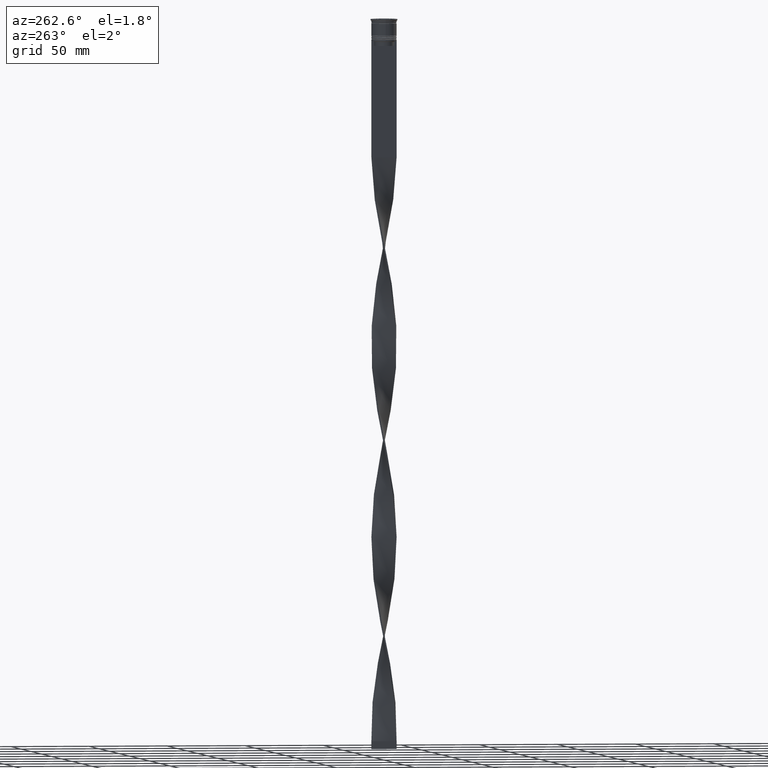
[diagram: clean part render]
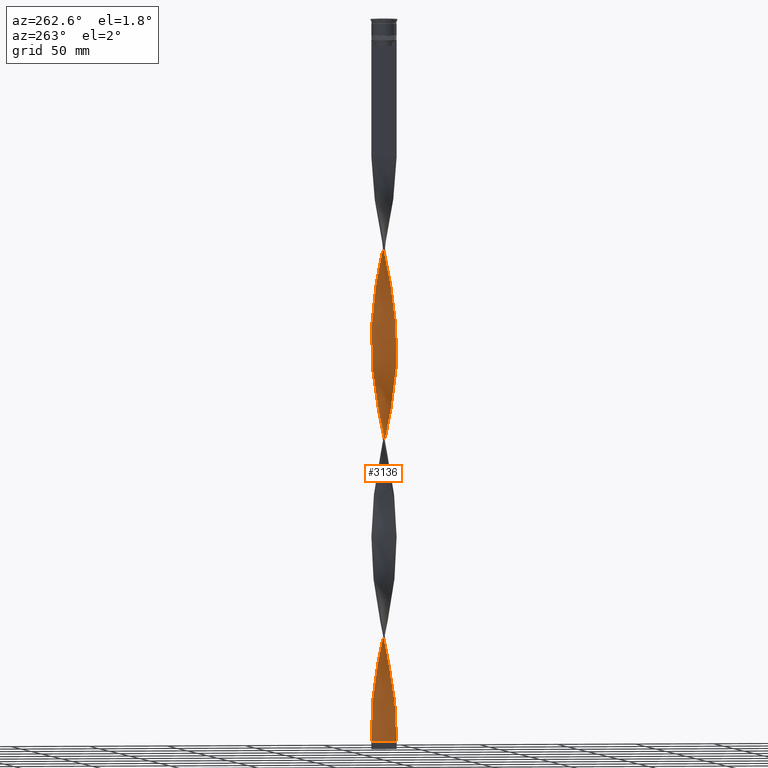
[diagram: same view with one face highlighted and labeled with its STEP entity id]
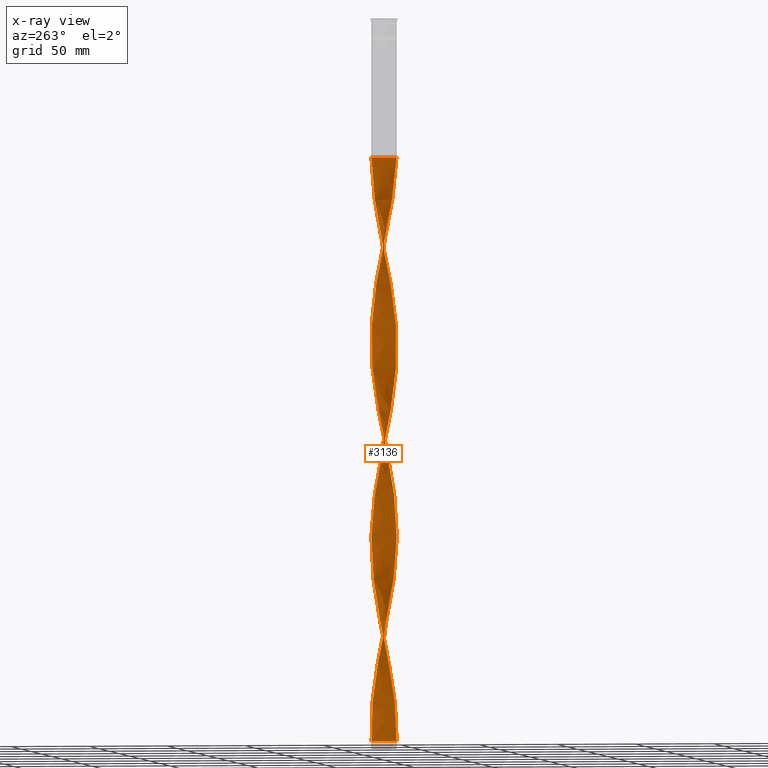
[diagram: x-ray of the same camera — body ghosted, the highlighted face saturated]
A machine part, auxiliary view. The second image highlights one B-rep face of the part: STEP entity #3136.
The next image is the same camera in x-ray: the body ghosted, the highlighted face saturated — about 0% of this face is hidden behind the body in this view.
In plain terms, the highlighted face is a freeform B-spline surface patch.
Its self-contained STEP definition (entity closure, byte-faithful):
#10 = CARTESIAN_POINT ( 'NONE',  ( -1.584676165788137192, 7.857404243742526440, -217.0434782608695627 ) ) ;
#20 = CARTESIAN_POINT ( 'NONE',  ( 4.660847909256216504, 6.521234297798387480, -184.7826086956521578 ) ) ;
#35 = CARTESIAN_POINT ( 'NONE',  ( -2.122137340211641909, 7.749009424445339356, -219.7318840579710297 ) ) ;
#44 = CARTESIAN_POINT ( 'NONE',  ( 7.586124921344944205, 2.646001252571962059, -160.5869565217391823 ) ) ;
#51 = CARTESIAN_POINT ( 'NONE',  ( -7.856552120720862398, -1.680833937442846038, -160.5869565217391823 ) ) ;
#55 = CARTESIAN_POINT ( 'NONE',  ( 2.639832812930094974, -7.568439913203886427, -346.0869565217391255 ) ) ;
#56 = CARTESIAN_POINT ( 'NONE',  ( 6.247418983026099326, -5.021927523424157158, -249.3043478260869392 ) ) ;
#61 = CARTESIAN_POINT ( 'NONE',  ( 8.012249295248937031, -0.5953781837169696001, -391.7898550724637516 ) ) ;
#68 = CARTESIAN_POINT ( 'NONE',  ( 2.213065603025609729, -7.723532520004563473, -225.1086956521739353 ) ) ;
#72 = CARTESIAN_POINT ( 'NONE',  ( 7.111726286817909859, -3.738176450121951433, -375.6594202898551771 ) ) ;
#74 = CARTESIAN_POINT ( 'NONE',  ( 8.018693425164364896, -0.5011683390727745824, -273.4999999999999432 ) ) ;
#80 = CARTESIAN_POINT ( 'NONE',  ( 3.645814369522659693, -7.138489867120506815, -351.4637681159420595 ) ) ;
#89 = CARTESIAN_POINT ( 'NONE',  ( -7.705527183036053884, -2.207906436308477716, -163.2753623188405641 ) ) ;
#97 = CARTESIAN_POINT ( 'NONE',  ( 4.660847909256216504, 6.521234297798387480, -432.1159420289855007 ) ) ;
#100 = CARTESIAN_POINT ( 'NONE',  ( 2.728603068017201316, -7.536890956966742827, -227.7971014492753454 ) ) ;
#106 = CARTESIAN_POINT ( 'NONE',  ( 7.934400707984902823, -1.138106060579910928, -389.1014492753622562 ) ) ;
#114 = CARTESIAN_POINT ( 'NONE',  ( 0.5000000000000001110, 7.999999999999996447, -88.00000000000000000 ) ) ;
#120 = CARTESIAN_POINT ( 'NONE',  ( 7.586124921344944205, 2.646001252571962059, -407.9202898550724399 ) ) ;
#122 = CARTESIAN_POINT ( 'NONE',  ( 1.584676165788138524, -7.857404243742526440, -93.37681159420290555 ) ) ;
#123 = CARTESIAN_POINT ( 'NONE',  ( 3.729461898010220100, -7.095147211389623898, -233.1739130434782510 ) ) ;
#128 = CARTESIAN_POINT ( 'NONE',  ( 3.157528285648548927, -7.387870401962434386, -348.7753623188405072 ) ) ;
#135 = CARTESIAN_POINT ( 'NONE',  ( -6.536472323464030509, -4.671738810705480915, -176.7173913043478137 ) ) ;
#139 = CARTESIAN_POINT ( 'NONE',  ( -6.590928236321654587, -4.594592357818171990, -295.0072463768116222 ) ) ;
#140 = CARTESIAN_POINT ( 'NONE',  ( 7.554502245351247147, 2.734978935174108727, -289.6304347826086882 ) ) ;
#145 = CARTESIAN_POINT ( 'NONE',  ( -0.04721499136463954555, -8.034200936960292694, -332.6449275362318758 ) ) ;
#146 = EDGE_CURVE ( 'NONE', #2101, #2381, #979, .T. ) ;
#154 = CARTESIAN_POINT ( 'NONE',  ( 6.873049228353421469, -4.124462911050407854, -254.6811594202898448 ) ) ;
#163 = CARTESIAN_POINT ( 'NONE',  ( 1.047214991364639358, 7.965799063039706418, -332.6449275362318758 ) ) ;
#181 = CARTESIAN_POINT ( 'NONE',  ( -8.018693425164364896, 0.5011683390727735832, -397.1666666666666856 ) ) ;
#187 = CARTESIAN_POINT ( 'NONE',  ( 6.247418983026106432, 5.021927523424159823, -421.3623188405797464 ) ) ;
#189 = CARTESIAN_POINT ( 'NONE',  ( -4.660847909256209398, 6.521234297798383928, -362.2173913043478137 ) ) ;
#197 = CARTESIAN_POINT ( 'NONE',  ( 2.639832812930094974, -7.568439913203886427, -98.75362318840578268 ) ) ;
#198 = CARTESIAN_POINT ( 'NONE',  ( -1.047214991364638470, -7.965799063039706418, -456.3115942028985614 ) ) ;
#206 = CARTESIAN_POINT ( 'NONE',  ( 4.660847909256216504, 6.521234297798387480, -432.1159420289855007 ) ) ;
#211 = CARTESIAN_POINT ( 'NONE',  ( -7.705527183036053884, -2.207906436308477716, -410.6086956521738216 ) ) ;
#219 = CARTESIAN_POINT ( 'NONE',  ( 2.122137340211639689, 7.749009424445332250, -327.2681159420290555 ) ) ;
#228 = CARTESIAN_POINT ( 'NONE',  ( 1.676915525582295619, 7.838236684360910367, -448.2463768115941889 ) ) ;
#234 = CARTESIAN_POINT ( 'NONE',  ( -7.856552120720862398, -1.680833937442846038, -407.9202898550724399 ) ) ;
#244 = CARTESIAN_POINT ( 'NONE',  ( -4.583881302556713777, -6.575563261354187006, -437.4927536231883778 ) ) ;
#257 = CARTESIAN_POINT ( 'NONE',  ( -7.947228946841973674, 1.044773691512637548, -394.4782608695651902 ) ) ;
#259 = CARTESIAN_POINT ( 'NONE',  ( 3.157528285648548927, -7.387870401962434386, -101.4420289855072497 ) ) ;
#276 = CARTESIAN_POINT ( 'NONE',  ( -5.903909729730553835, 5.449262689030142326, -370.2826086956521863 ) ) ;
#291 = CARTESIAN_POINT ( 'NONE',  ( 5.505411142615669107, 5.825843127888296280, -179.4057971014492807 ) ) ;
#303 = CARTESIAN_POINT ( 'NONE',  ( 3.157528285648548927, -7.387870401962434386, -101.4420289855072497 ) ) ;
#321 = CARTESIAN_POINT ( 'NONE',  ( 5.839456248204609956, -5.518275516514862034, -117.5724637681159521 ) ) ;
#327 = CARTESIAN_POINT ( 'NONE',  ( -4.583881302556712001, 6.575563261354197664, -233.1739130434782510 ) ) ;
#339 = CARTESIAN_POINT ( 'NONE',  ( -6.536472323464034062, 4.671738810705488021, -246.6159420289854722 ) ) ;
#347 = CARTESIAN_POINT ( 'NONE',  ( 7.730944694932269989, 2.117190148262231286, -157.8985507246376585 ) ) ;
#356 = CARTESIAN_POINT ( 'NONE',  ( 7.705527183036060102, -2.207906436308480824, -136.3913043478260931 ) ) ;
#367 = CARTESIAN_POINT ( 'NONE',  ( 5.839456248204610844, -5.518275516514861145, -117.5724637681159379 ) ) ;
#382 = CARTESIAN_POINT ( 'NONE',  ( 4.134100453396771790, -6.889109332278581022, -354.1521739130434980 ) ) ;
#383 = CARTESIAN_POINT ( 'NONE',  ( -3.645814369522659248, -7.138489867120498822, -195.5362318840579405 ) ) ;
#389 = CARTESIAN_POINT ( 'NONE',  ( 6.536472323464036727, -4.671738810705485356, -122.9492753623188577 ) ) ;
#394 = CARTESIAN_POINT ( 'NONE',  ( -5.839456248204605515, -5.518275516514855816, -182.0942028985507477 ) ) ;
#398 = CARTESIAN_POINT ( 'NONE',  ( 6.187964285834322453, -5.095007163610173251, -367.5942028985506909 ) ) ;
#399 = CARTESIAN_POINT ( 'NONE',  ( 6.873049228353421469, -4.124462911050407854, -254.6811594202898448 ) ) ;
#405 = CARTESIAN_POINT ( 'NONE',  ( -7.856552120720867727, 1.680833937442850035, -262.7463768115941889 ) ) ;
#414 = CARTESIAN_POINT ( 'NONE',  ( -7.370647570865066278, 3.150167358427299558, -136.3913043478260931 ) ) ;
#419 = CARTESIAN_POINT ( 'NONE',  ( 3.244140533008802674, 7.350249393928931063, -440.1811594202898164 ) ) ;
#420 = CARTESIAN_POINT ( 'NONE',  ( 6.590928236321647482, -4.594592357818171990, -251.9927536231884631 ) ) ;
#425 = CARTESIAN_POINT ( 'NONE',  ( 4.134100453396771790, -6.889109332278581910, -354.1521739130434980 ) ) ;
#436 = CARTESIAN_POINT ( 'NONE',  ( -7.947228946841973674, 1.044773691512637548, -147.1449275362318758 ) ) ;
#444 = CARTESIAN_POINT ( 'NONE',  ( 8.012249295248937031, -0.5953781837169696001, -391.7898550724637516 ) ) ;
#446 = CARTESIAN_POINT ( 'NONE',  ( 7.370647570865066278, -3.150167358427300446, -260.0579710144927503 ) ) ;
#451 = CARTESIAN_POINT ( 'NONE',  ( -6.247418983026107320, -5.021927523424158935, -297.6956521739130039 ) ) ;
#463 = CARTESIAN_POINT ( 'NONE',  ( 0.5939902197518082128, 7.993570892838771869, -453.6231884057970660 ) ) ;
#465 = CARTESIAN_POINT ( 'NONE',  ( -6.536472323464030509, -4.671738810705480915, -176.7173913043478137 ) ) ;
#469 = CARTESIAN_POINT ( 'NONE',  ( -3.729461898010225873, -7.095147211389629227, -313.8260869565216922 ) ) ;
#476 = CARTESIAN_POINT ( 'NONE',  ( 1.140765448138977955, -7.952940848717248379, -219.7318840579710297 ) ) ;
#482 = CARTESIAN_POINT ( 'NONE',  ( -6.873049228353423246, 4.124462911050404301, -378.3478260869565020 ) ) ;
#489 = CARTESIAN_POINT ( 'NONE',  ( 8.015471360206651852, -0.04710492232209864683, -394.4782608695651902 ) ) ;
#502 = CARTESIAN_POINT ( 'NONE',  ( 0.5000000000000001110, 7.999999999999996447, -335.3333333333333144 ) ) ;
#511 = CARTESIAN_POINT ( 'NONE',  ( 2.213065603025613282, 7.723532520004568802, -445.5579710144927503 ) ) ;
#516 = CARTESIAN_POINT ( 'NONE',  ( -1.140765448138977733, 7.952940848717248379, -343.3985507246376869 ) ) ;
#525 = CARTESIAN_POINT ( 'NONE',  ( -5.436559199960631972, -5.890146353472328400, -432.1159420289855007 ) ) ;
#533 = CARTESIAN_POINT ( 'NONE',  ( -7.554502245351248035, -2.734978935174108283, -413.2971014492753739 ) ) ;
#544 = CARTESIAN_POINT ( 'NONE',  ( -8.012249295248929926, -0.5953781837169674906, -402.5434782608696196 ) ) ;
#551 = CARTESIAN_POINT ( 'NONE',  ( 5.839456248204608180, 5.518275516514852264, -305.7608695652173196 ) ) ;
#562 = CARTESIAN_POINT ( 'NONE',  ( 1.584676165788142521, 7.857404243742519334, -329.9565217391304373 ) ) ;
#574 = CARTESIAN_POINT ( 'NONE',  ( 0.5000000000000001110, -8.000000000000003553, -88.00000000000000000 ) ) ;
#577 = CARTESIAN_POINT ( 'NONE',  ( -7.111726286817905418, -3.738176450121946104, -418.6739130434783078 ) ) ;
#601 = CARTESIAN_POINT ( 'NONE',  ( -5.505411142615662001, 5.825843127888292727, -367.5942028985506909 ) ) ;
#606 = CARTESIAN_POINT ( 'NONE',  ( 5.436559199960634636, -5.890146353472335505, -114.8840579710144851 ) ) ;
#613 = CARTESIAN_POINT ( 'NONE',  ( 6.536472323464036727, -4.671738810705485356, -122.9492753623188577 ) ) ;
#614 = CARTESIAN_POINT ( 'NONE',  ( -2.213065603025609285, 7.723532520004562585, -101.4420289855072497 ) ) ;
#619 = CARTESIAN_POINT ( 'NONE',  ( -2.122137340211642353, 7.749009424445339356, -219.7318840579710297 ) ) ;
#632 = CARTESIAN_POINT ( 'NONE',  ( 2.728603068017209310, 7.536890956966746380, -195.5362318840579405 ) ) ;
#634 = CARTESIAN_POINT ( 'NONE',  ( -5.505411142615662001, 5.825843127888292727, -120.2608695652173907 ) ) ;
#642 = DIRECTION ( 'NONE',  ( 0.000000000000000000, 1.000000000000000000, 0.000000000000000000 ) ) ;
#644 = CARTESIAN_POINT ( 'NONE',  ( 7.155170220385206115, 3.654333464282639277, -165.9637681159420595 ) ) ;
#659 = CARTESIAN_POINT ( 'NONE',  ( 6.590928236321653699, 4.594592357818171990, -171.3405797101449366 ) ) ;
#665 = CARTESIAN_POINT ( 'NONE',  ( 3.645814369522659693, -7.138489867120506815, -104.1304347826086882 ) ) ;
#679 = CARTESIAN_POINT ( 'NONE',  ( 7.111726286817909859, -3.738176450121951433, -128.3260869565217206 ) ) ;
#686 = CARTESIAN_POINT ( 'NONE',  ( -3.157528285648548483, -7.387870401962426392, -445.5579710144927503 ) ) ;
#696 = CARTESIAN_POINT ( 'NONE',  ( 2.213065603025613282, 7.723532520004568802, -198.2246376811594359 ) ) ;
#700 = CARTESIAN_POINT ( 'NONE',  ( -4.134100453396769126, -6.889109332278574804, -192.8478260869565020 ) ) ;
#708 = CARTESIAN_POINT ( 'NONE',  ( 7.554502245351253364, -2.734978935174111836, -133.7028985507246546 ) ) ;
#715 = CARTESIAN_POINT ( 'NONE',  ( -1.676915525582293620, 7.838236684360903261, -98.75362318840578268 ) ) ;
#720 = CARTESIAN_POINT ( 'NONE',  ( 0.5000000000000001110, -8.000000000000003553, -335.3333333333333144 ) ) ;
#722 = CARTESIAN_POINT ( 'NONE',  ( 1.676915525582291400, -7.838236684360903261, -222.4202898550724399 ) ) ;
#729 = CARTESIAN_POINT ( 'NONE',  ( -6.873049228353431239, -4.124462911050402525, -292.3188405797101268 ) ) ;
#741 = CARTESIAN_POINT ( 'NONE',  ( -5.505411142615672659, -5.825843127888293616, -303.0724637681159379 ) ) ;
#742 = CARTESIAN_POINT ( 'NONE',  ( 7.705527183036053884, 2.207906436308476827, -286.9420289855072497 ) ) ;
#749 = CARTESIAN_POINT ( 'NONE',  ( -2.728603068017210198, -7.536890956966746380, -319.2028985507245693 ) ) ;
#756 = CARTESIAN_POINT ( 'NONE',  ( -4.214783263011645076, 6.840045028850322950, -112.1956521739130466 ) ) ;
#758 = CARTESIAN_POINT ( 'NONE',  ( -0.4999999999999997780, 2.666666666666670515, -458.9999999999999432 ) ) ;
#761 = CARTESIAN_POINT ( 'NONE',  ( 8.015471360206651852, -0.04710492232209864683, -394.4782608695651902 ) ) ;
#762 = CARTESIAN_POINT ( 'NONE',  ( -8.018693425164364896, 0.5011683390727735832, -149.8333333333333144 ) ) ;
#767 = CARTESIAN_POINT ( 'NONE',  ( -0.5939902197518127647, -7.993570892838771869, -329.9565217391304373 ) ) ;
#778 = CARTESIAN_POINT ( 'NONE',  ( -8.018693425164364896, 0.5011683390727736942, -149.8333333333332860 ) ) ;
#785 = CARTESIAN_POINT ( 'NONE',  ( 1.676915525582295619, 7.838236684360910367, -448.2463768115941889 ) ) ;
#787 = CARTESIAN_POINT ( 'NONE',  ( -6.247418983026099326, 5.021927523424156270, -125.6376811594202820 ) ) ;
#789 = ORIENTED_EDGE ( 'NONE', *, *, #1112, .T. ) ;
#793 = CARTESIAN_POINT ( 'NONE',  ( -7.370647570865075160, -3.150167358427300002, -286.9420289855072497 ) ) ;
#799 = CARTESIAN_POINT ( 'NONE',  ( -1.047214991364638470, -7.965799063039706418, -208.9782608695651902 ) ) ;
#804 = CARTESIAN_POINT ( 'NONE',  ( -0.4999999999999991673, 8.000000000000003553, -458.9999999999999432 ) ) ;
#806 = CARTESIAN_POINT ( 'NONE',  ( -2.639832812930093198, -7.568439913203878433, -448.2463768115941889 ) ) ;
#811 = CARTESIAN_POINT ( 'NONE',  ( 7.705527183036060102, -2.207906436308480824, -383.7246376811593791 ) ) ;
#817 = CARTESIAN_POINT ( 'NONE',  ( 5.106912555500772832, -6.202423566746444017, -241.2391304347826519 ) ) ;
#824 = CARTESIAN_POINT ( 'NONE',  ( -2.728603068017203537, 7.536890956966741939, -351.4637681159420595 ) ) ;
#828 = CARTESIAN_POINT ( 'NONE',  ( 0.5000000000000001110, -8.000000000000003553, -88.00000000000000000 ) ) ;
#835 = CARTESIAN_POINT ( 'NONE',  ( -7.934400707984895718, -1.138106060579906709, -405.2318840579709445 ) ) ;
#846 = CARTESIAN_POINT ( 'NONE',  ( -1.140765448138977955, 7.952940848717247491, -343.3985507246376869 ) ) ;
#862 = CARTESIAN_POINT ( 'NONE',  ( -4.214783263011645076, 6.840045028850322950, -359.5289855072463752 ) ) ;
#873 = CARTESIAN_POINT ( 'NONE',  ( 4.134100453396772679, 6.889109332278572140, -316.5144927536231876 ) ) ;
#879 = CARTESIAN_POINT ( 'NONE',  ( 7.370647570865075160, 3.150167358427300890, -410.6086956521738216 ) ) ;
#885 = CARTESIAN_POINT ( 'NONE',  ( 4.583881302556711113, 6.575563261354189670, -313.8260869565216922 ) ) ;
#895 = CARTESIAN_POINT ( 'NONE',  ( -5.903909729730553835, 5.449262689030142326, -370.2826086956521863 ) ) ;
#905 = CARTESIAN_POINT ( 'NONE',  ( 2.639832812930094086, 7.568439913203878433, -324.5797101449275033 ) ) ;
#934 = CARTESIAN_POINT ( 'NONE',  ( 3.157528285648549371, 7.387870401962426392, -321.8913043478260647 ) ) ;
#946 = CARTESIAN_POINT ( 'NONE',  ( -7.934400707984902823, 1.138106060579908485, -265.4347826086956275 ) ) ;
#958 = CARTESIAN_POINT ( 'NONE',  ( -1.047214991364638470, -7.965799063039706418, -456.3115942028985614 ) ) ;
#969 = CARTESIAN_POINT ( 'NONE',  ( 7.554502245351252476, -2.734978935174111836, -133.7028985507246546 ) ) ;
#971 = CARTESIAN_POINT ( 'NONE',  ( 0.5000000000000001110, 7.999999999999996447, -88.00000000000000000 ) ) ;
#978 = CARTESIAN_POINT ( 'NONE',  ( -2.639832812930093198, 7.568439913203886427, -222.4202898550724399 ) ) ;
#979 = B_SPLINE_CURVE_WITH_KNOTS ( 'NONE', 3,
 ( #2436, #2092, #758, #3149 ),
 .UNSPECIFIED., .F., .F.,
 ( 4, 4 ),
 ( 0.000000000000000000, 1.000000000000000000 ),
 .UNSPECIFIED. ) ;
#992 = CARTESIAN_POINT ( 'NONE',  ( 1.676915525582295619, 7.838236684360910367, -200.9130434782608745 ) ) ;
#1002 = CARTESIAN_POINT ( 'NONE',  ( 4.583881302556714665, -6.575563261354194999, -109.5072463768115796 ) ) ;
#1018 = CARTESIAN_POINT ( 'NONE',  ( -7.554502245351251588, 2.734978935174113612, -257.3695652173913118 ) ) ;
#1025 = CARTESIAN_POINT ( 'NONE',  ( 4.214783263011651293, 6.840045028850328279, -187.4710144927535964 ) ) ;
#1036 = CARTESIAN_POINT ( 'NONE',  ( -4.583881302556712001, 6.575563261354197664, -233.1739130434782510 ) ) ;
#1044 = CARTESIAN_POINT ( 'NONE',  ( -4.134100453396769126, -6.889109332278574804, -440.1811594202897595 ) ) ;
#1051 = CARTESIAN_POINT ( 'NONE',  ( 1.676915525582291400, -7.838236684360903261, -222.4202898550724399 ) ) ;
#1054 = ORIENTED_EDGE ( 'NONE', *, *, #3457, .F. ) ;
#1056 = CARTESIAN_POINT ( 'NONE',  ( -6.873049228353431239, -4.124462911050402525, -292.3188405797101268 ) ) ;
#1059 = CARTESIAN_POINT ( 'NONE',  ( -7.856552120720863286, -1.680833937442846038, -160.5869565217391539 ) ) ;
#1068 = CARTESIAN_POINT ( 'NONE',  ( 7.947228946841980779, 1.044773691512636882, -399.8550724637680673 ) ) ;
#1078 = FACE_OUTER_BOUND ( 'NONE', #2475, .T. ) ;
#1083 = CARTESIAN_POINT ( 'NONE',  ( 7.370647570865075160, 3.150167358427300890, -410.6086956521738216 ) ) ;
#1085 = CARTESIAN_POINT ( 'NONE',  ( -7.155170220385199009, 3.654333464282637500, -133.7028985507246546 ) ) ;
#1092 = CARTESIAN_POINT ( 'NONE',  ( -6.590928236321654587, -4.594592357818172879, -295.0072463768116791 ) ) ;
#1099 = CARTESIAN_POINT ( 'NONE',  ( -6.187964285834318900, -5.095007163610166145, -179.4057971014492807 ) ) ;
#1104 = CARTESIAN_POINT ( 'NONE',  ( 7.333114266084581168, -3.236577692648031412, -378.3478260869565020 ) ) ;
#1105 = CARTESIAN_POINT ( 'NONE',  ( -5.436559199960631972, -5.890146353472328400, -184.7826086956521578 ) ) ;
#1111 = CARTESIAN_POINT ( 'NONE',  ( -7.554502245351252476, 2.734978935174113612, -257.3695652173913118 ) ) ;
#1112 = EDGE_CURVE ( 'NONE', #4055, #2381, #1232, .T. ) ;
#1121 = CARTESIAN_POINT ( 'NONE',  ( -1.140765448138977733, 7.952940848717248379, -96.06521739130434412 ) ) ;
#1127 = CARTESIAN_POINT ( 'NONE',  ( 6.590928236321653699, 4.594592357818171990, -418.6739130434783078 ) ) ;
#1128 = CARTESIAN_POINT ( 'NONE',  ( 7.856552120720863286, 1.680833937442845150, -284.2536231884058111 ) ) ;
#1132 = CARTESIAN_POINT ( 'NONE',  ( 5.033662151716659316, -6.262017190429809865, -359.5289855072463752 ) ) ;
#1142 = CARTESIAN_POINT ( 'NONE',  ( -7.730944694932261996, 2.117190148262233063, -141.7681159420289703 ) ) ;
#1148 = CARTESIAN_POINT ( 'NONE',  ( 2.122137340211641465, -7.749009424445339356, -343.3985507246376869 ) ) ;
#1150 = CARTESIAN_POINT ( 'NONE',  ( 8.015471360206644746, 0.04710492232209789049, -276.1884057971014386 ) ) ;
#1156 = CARTESIAN_POINT ( 'NONE',  ( -7.155170220385206115, -3.654333464282639721, -289.6304347826086882 ) ) ;
#1162 = CARTESIAN_POINT ( 'NONE',  ( 5.903909729730552058, -5.449262689030144102, -246.6159420289854722 ) ) ;
#1169 = CARTESIAN_POINT ( 'NONE',  ( 5.839456248204607292, 5.518275516514853152, -305.7608695652173765 ) ) ;
#1187 = CARTESIAN_POINT ( 'NONE',  ( 7.111726286817906306, 3.738176450121945660, -295.0072463768116222 ) ) ;
#1198 = CARTESIAN_POINT ( 'NONE',  ( 7.111726286817906306, 3.738176450121945660, -295.0072463768116791 ) ) ;
#1211 = CARTESIAN_POINT ( 'NONE',  ( -6.187964285834318900, -5.095007163610166145, -426.7391304347826235 ) ) ;
#1219 = CARTESIAN_POINT ( 'NONE',  ( 5.505411142615669107, 5.825843127888296280, -426.7391304347826235 ) ) ;
#1226 = CARTESIAN_POINT ( 'NONE',  ( -5.436559199960631972, -5.890146353472328400, -432.1159420289855007 ) ) ;
#1232 =( BOUNDED_CURVE ( )  B_SPLINE_CURVE ( 2, ( #828, #2833, #122, #1660, #197, #259, #2948, #3640, #3880, #3698, #606, #321, #2356, #613, #1694, #679, #3666, #969, #356, #4013, #2960, #3313, #1951, #2015, #3004, #1673, #1996, #3381, #3287, #1328, #3357, #659, #3336, #2319, #291, #4034, #3704, #1630, #3616, #3026, #632, #696, #992, #2338, #4305, #3969, #2296, #4277, #10, #35, #1373, #1605, #1309, #3948, #1036, #2035, #1349, #1286, #2932, #339, #2664, #2685, #3687, #1018, #2984, #2601, #946, #2274, #2624, #3638, #1971, #1655, #4323, #2641, #3989, #3133, #1056, #139, #3728, #4098, #741, #4140, #2136, #1735, #2706, #2376, #1781, #1718, #1470, #1410, #2770, #2056, #720, #1755, #1800, #1148, #55, #3400, #2096, #382, #3417, #2725, #3461, #2749, #398, #3441, #3063, #72, #1104, #3112, #4119, #2419, #2074, #444, #761, #2464, #3049, #4074, #3088, #120, #1083, #1453, #1390, #1127, #2439, #4053, #3814, #2397, #97, #3791, #3749, #419, #1432, #3770, #785, #2121, #463, #2789, #804 ),
 .UNSPECIFIED., .F., .T. ) 
 B_SPLINE_CURVE_WITH_KNOTS ( ( 3, 2, 2, 2, 2, 2, 2, 2, 2, 2, 2, 2, 2, 2, 2, 2, 2, 2, 2, 2, 2, 2, 2, 2, 2, 2, 2, 2, 2, 2, 2, 2, 2, 2, 2, 2, 2, 2, 2, 2, 2, 2, 2, 2, 2, 2, 2, 2, 2, 2, 2, 2, 2, 2, 2, 2, 2, 2, 2, 2, 2, 2, 2, 2, 2, 2, 2, 2, 2, 3 ),
 ( 0.000000000000000000, 0.01086956521739130405, 0.02173913043478260809, 0.03260869565217391214, 0.04347826086956521618, 0.05434782608695652023, 0.06521739130434782428, 0.07608695652173913526, 0.08695652173913043237, 0.09782608695652174335, 0.1086956521739130405, 0.1195652173913043653, 0.1304347826086956486, 0.1413043478260869457, 0.1521739130434782705, 0.1630434782608695676, 0.1739130434782608647, 0.1847826086956521896, 0.1956521739130434867, 0.2065217391304347838, 0.2173913043478260809, 0.2282608695652173780, 0.2391304347826087306, 0.2500000000000000000, 0.2608695652173912971, 0.2717391304347825942, 0.2826086956521738913, 0.2934782608695652439, 0.3043478260869565410, 0.3152173913043478382, 0.3260869565217391353, 0.3369565217391304324, 0.3478260869565217295, 0.3586956521739130266, 0.3695652173913043792, 0.3804347826086956208, 0.3913043478260869734, 0.4021739130434782705, 0.4130434782608695676, 0.4239130434782609202, 0.4347826086956521618, 0.4456521739130434590, 0.4565217391304347561, 0.4673913043478261087, 0.4782608695652174613, 0.4891304347826087029, 0.5000000000000000000, 0.5108695652173913526, 0.5217391304347825942, 0.5326086956521739468, 0.5434782608695651884, 0.5543478260869565410, 0.5652173913043477826, 0.5760869565217391353, 0.5869565217391304879, 0.5978260869565217295, 0.6086956521739130821, 0.6195652173913043237, 0.6304347826086956763, 0.6413043478260869179, 0.6521739130434782705, 0.6630434782608695121, 0.6739130434782608647, 0.6847826086956522174, 0.6956521739130434590, 0.7065217391304349226, 0.7173913043478260532, 0.7282608695652174058, 0.7391304347826087584, 0.7500000000000000000 ),
 .UNSPECIFIED. ) 
 CURVE ( )  GEOMETRIC_REPRESENTATION_ITEM ( )  RATIONAL_B_SPLINE_CURVE ( ( 1.000000000000000000, 0.9976687691905391508, 1.000000000000000000, 0.9976687691905391508, 1.000000000000000000, 0.9976687691905391508, 1.000000000000000000, 0.9976687691905391508, 1.000000000000000000, 0.9976687691905391508, 1.000000000000000000, 0.9976687691905391508, 1.000000000000000000, 0.9976687691905391508, 1.000000000000000000, 0.9976687691905391508, 1.000000000000000000, 0.9976687691905391508, 1.000000000000000000, 0.9976687691905391508, 1.000000000000000000, 0.9976687691905391508, 1.000000000000000000, 0.9976687691905391508, 1.000000000000000000, 0.9976687691905391508, 1.000000000000000000, 0.9976687691905391508, 1.000000000000000000, 0.9976687691905391508, 1.000000000000000000, 0.9976687691905391508, 1.000000000000000000, 0.9976687691905391508, 1.000000000000000000, 0.9976687691905391508, 1.000000000000000000, 0.9976687691905391508, 1.000000000000000000, 0.9976687691905391508, 1.000000000000000000, 0.9976687691905391508, 1.000000000000000000, 0.9976687691905391508, 1.000000000000000000, 0.9976687691905391508, 1.000000000000000000, 0.9976687691905391508, 1.000000000000000000, 0.9976687691905391508, 1.000000000000000000, 0.9976687691905391508, 1.000000000000000000, 0.9976687691905391508, 1.000000000000000000, 0.9976687691905391508, 1.000000000000000000, 0.9976687691905391508, 1.000000000000000000, 0.9976687691905391508, 1.000000000000000000, 0.9976687691905391508, 1.000000000000000000, 0.9976687691905391508, 1.000000000000000000, 0.9976687691905391508, 1.000000000000000000, 0.9976687691905391508, 1.000000000000000000, 0.9976687691905391508, 1.000000000000000000, 0.9976687691905391508, 1.000000000000000000, 0.9976687691905391508, 1.000000000000000000, 0.9976687691905391508, 1.000000000000000000, 0.9976687691905391508, 1.000000000000000000, 0.9976687691905391508, 1.000000000000000000, 0.9976687691905391508, 1.000000000000000000, 0.9976687691905391508, 1.000000000000000000, 0.9976687691905391508, 1.000000000000000000, 0.9976687691905391508, 1.000000000000000000, 0.9976687691905391508, 1.000000000000000000, 0.9976687691905391508, 1.000000000000000000, 0.9976687691905391508, 1.000000000000000000, 0.9976687691905391508, 1.000000000000000000, 0.9976687691905391508, 1.000000000000000000, 0.9976687691905391508, 1.000000000000000000, 0.9976687691905391508, 1.000000000000000000, 0.9976687691905391508, 1.000000000000000000, 0.9976687691905391508, 1.000000000000000000, 0.9976687691905391508, 1.000000000000000000, 0.9976687691905391508, 1.000000000000000000, 0.9976687691905391508, 1.000000000000000000, 0.9976687691905391508, 1.000000000000000000, 0.9976687691905391508, 1.000000000000000000, 0.9976687691905391508, 1.000000000000000000, 0.9976687691905391508, 1.000000000000000000, 0.9976687691905391508, 1.000000000000000000, 0.9976687691905391508, 1.000000000000000000, 0.9976687691905391508, 1.000000000000000000, 0.9976687691905391508, 1.000000000000000000, 0.9976687691905391508, 1.000000000000000000, 0.9976687691905391508, 1.000000000000000000, 0.9976687691905391508, 1.000000000000000000, 0.9976687691905391508, 1.000000000000000000, 0.9976687691905391508, 1.000000000000000000 ) ) 
 REPRESENTATION_ITEM ( '' )  );
#1234 = CARTESIAN_POINT ( 'NONE',  ( -7.554502245351247147, -2.734978935174108283, -413.2971014492753739 ) ) ;
#1240 = CARTESIAN_POINT ( 'NONE',  ( 6.590928236321653699, 4.594592357818172879, -418.6739130434783078 ) ) ;
#1247 = CARTESIAN_POINT ( 'NONE',  ( 6.187964285834320677, 5.095007163610164369, -303.0724637681159379 ) ) ;
#1256 = CARTESIAN_POINT ( 'NONE',  ( -7.705527183036053884, -2.207906436308477716, -410.6086956521738216 ) ) ;
#1268 = CARTESIAN_POINT ( 'NONE',  ( 5.436559199960631972, 5.890146353472327512, -308.4492753623188150 ) ) ;
#1286 = CARTESIAN_POINT ( 'NONE',  ( -5.839456248204609068, 5.518275516514862922, -241.2391304347826235 ) ) ;
#1294 = CARTESIAN_POINT ( 'NONE',  ( 8.015471360206651852, -0.04710492232209864683, -147.1449275362318758 ) ) ;
#1309 = CARTESIAN_POINT ( 'NONE',  ( -3.645814369522657472, 7.138489867120507704, -227.7971014492753454 ) ) ;
#1312 = CARTESIAN_POINT ( 'NONE',  ( -4.214783263011645964, 6.840045028850323838, -112.1956521739130466 ) ) ;
#1318 = CARTESIAN_POINT ( 'NONE',  ( 5.505411142615669107, 5.825843127888296280, -179.4057971014492807 ) ) ;
#1328 = CARTESIAN_POINT ( 'NONE',  ( 7.155170220385206115, 3.654333464282639277, -165.9637681159420595 ) ) ;
#1336 = CARTESIAN_POINT ( 'NONE',  ( -3.157528285648548927, 7.387870401962434386, -225.1086956521739353 ) ) ;
#1349 = CARTESIAN_POINT ( 'NONE',  ( -5.436559199960634636, 5.890146353472335505, -238.5507246376811565 ) ) ;
#1358 = CARTESIAN_POINT ( 'NONE',  ( 3.244140533008802674, 7.350249393928931063, -192.8478260869565020 ) ) ;
#1373 = CARTESIAN_POINT ( 'NONE',  ( -2.639832812930093198, 7.568439913203886427, -222.4202898550724399 ) ) ;
#1379 = CARTESIAN_POINT ( 'NONE',  ( -0.5000000000000011102, -7.999999999999996447, -458.9999999999999432 ) ) ;
#1387 = CARTESIAN_POINT ( 'NONE',  ( -7.934400707984895718, -1.138106060579906709, -157.8985507246376585 ) ) ;
#1390 = CARTESIAN_POINT ( 'NONE',  ( 6.873049228353429463, 4.124462911050406078, -415.9855072463768124 ) ) ;
#1391 = CARTESIAN_POINT ( 'NONE',  ( 7.730944694932262884, -2.117190148262230398, -265.4347826086956275 ) ) ;
#1396 = CARTESIAN_POINT ( 'NONE',  ( -1.676915525582296285, -7.838236684360910367, -324.5797101449275033 ) ) ;
#1403 = CARTESIAN_POINT ( 'NONE',  ( -4.583881302556713777, -6.575563261354187006, -190.1594202898550634 ) ) ;
#1410 = CARTESIAN_POINT ( 'NONE',  ( -1.140765448138978844, -7.952940848717254596, -327.2681159420290555 ) ) ;
#1411 = CARTESIAN_POINT ( 'NONE',  ( -7.875764468519589556, 1.588379043952501846, -144.4565217391304657 ) ) ;
#1417 = CARTESIAN_POINT ( 'NONE',  ( -6.824099305140972405, 4.204957630413717951, -249.3043478260869392 ) ) ;
#1432 = CARTESIAN_POINT ( 'NONE',  ( 2.728603068017209310, 7.536890956966746380, -442.8695652173913118 ) ) ;
#1434 = CARTESIAN_POINT ( 'NONE',  ( -7.111726286817906306, -3.738176450121946548, -171.3405797101449366 ) ) ;
#1442 = CARTESIAN_POINT ( 'NONE',  ( -7.705527183036060102, 2.207906436308481712, -260.0579710144927503 ) ) ;
#1449 = CARTESIAN_POINT ( 'NONE',  ( -5.436559199960631972, -5.890146353472328400, -184.7826086956521578 ) ) ;
#1453 = CARTESIAN_POINT ( 'NONE',  ( 7.155170220385206115, 3.654333464282639277, -413.2971014492753739 ) ) ;
#1454 = CARTESIAN_POINT ( 'NONE',  ( -5.033662151716655764, -6.262017190429802760, -187.4710144927535964 ) ) ;
#1458 = CARTESIAN_POINT ( 'NONE',  ( -7.947228946841980779, -1.044773691512637548, -276.1884057971014386 ) ) ;
#1465 = CARTESIAN_POINT ( 'NONE',  ( -2.213065603025609729, 7.723532520004563473, -101.4420289855072497 ) ) ;
#1470 = CARTESIAN_POINT ( 'NONE',  ( -1.676915525582296285, -7.838236684360910367, -324.5797101449275033 ) ) ;
#1471 = CARTESIAN_POINT ( 'NONE',  ( 7.333114266084577615, 3.236577692648022975, -292.3188405797101268 ) ) ;
#1478 = CARTESIAN_POINT ( 'NONE',  ( 1.584676165788138524, -7.857404243742526440, -340.7101449275362484 ) ) ;
#1489 = CARTESIAN_POINT ( 'NONE',  ( 6.247418983026099326, -5.021927523424157158, -249.3043478260869392 ) ) ;
#1497 = CARTESIAN_POINT ( 'NONE',  ( -7.155170220385199009, 3.654333464282637500, -381.0362318840579974 ) ) ;
#1501 = CARTESIAN_POINT ( 'NONE',  ( 0.5000000000000001110, -8.000000000000003553, -88.00000000000000000 ) ) ;
#1516 = CARTESIAN_POINT ( 'NONE',  ( -6.824099305140967076, -4.204957630413713510, -421.3623188405797464 ) ) ;
#1522 = CARTESIAN_POINT ( 'NONE',  ( 3.244140533008802674, 7.350249393928931063, -440.1811594202897595 ) ) ;
#1525 = CARTESIAN_POINT ( 'NONE',  ( -6.590928236321647482, 4.594592357818171990, -375.6594202898551771 ) ) ;
#1545 = CARTESIAN_POINT ( 'NONE',  ( -7.155170220385199009, 3.654333464282637500, -381.0362318840579974 ) ) ;
#1558 = CARTESIAN_POINT ( 'NONE',  ( -2.213065603025609285, 7.723532520004562585, -348.7753623188405641 ) ) ;
#1574 = CARTESIAN_POINT ( 'NONE',  ( 7.705527183036053884, 2.207906436308476827, -286.9420289855072497 ) ) ;
#1582 = CARTESIAN_POINT ( 'NONE',  ( -7.111726286817906306, -3.738176450121946548, -418.6739130434783078 ) ) ;
#1591 = LINE ( 'NONE', #574, #1973 ) ;
#1594 = CARTESIAN_POINT ( 'NONE',  ( -5.839456248204605515, -5.518275516514855816, -429.4275362318841189 ) ) ;
#1605 = CARTESIAN_POINT ( 'NONE',  ( -3.157528285648548927, 7.387870401962434386, -225.1086956521739353 ) ) ;
#1613 = CARTESIAN_POINT ( 'NONE',  ( -2.728603068017203537, 7.536890956966741939, -351.4637681159420595 ) ) ;
#1630 = CARTESIAN_POINT ( 'NONE',  ( 4.214783263011652181, 6.840045028850328279, -187.4710144927535964 ) ) ;
#1641 = CARTESIAN_POINT ( 'NONE',  ( 6.187964285834322453, -5.095007163610173251, -120.2608695652173907 ) ) ;
#1655 = CARTESIAN_POINT ( 'NONE',  ( -7.875764468519596662, -1.588379043952496961, -278.8768115942028771 ) ) ;
#1660 = CARTESIAN_POINT ( 'NONE',  ( 2.122137340211641465, -7.749009424445339356, -96.06521739130434412 ) ) ;
#1661 = CARTESIAN_POINT ( 'NONE',  ( 4.134100453396771790, -6.889109332278581910, -106.8188405797101268 ) ) ;
#1673 = CARTESIAN_POINT ( 'NONE',  ( 7.875764468519596662, 1.588379043952501402, -155.2101449275362199 ) ) ;
#1683 = CARTESIAN_POINT ( 'NONE',  ( 7.856552120720867727, -1.680833937442850701, -139.0797101449275317 ) ) ;
#1694 = CARTESIAN_POINT ( 'NONE',  ( 6.824099305140972405, -4.204957630413717062, -125.6376811594202820 ) ) ;
#1699 = ORIENTED_EDGE ( 'NONE', *, *, #2247, .F. ) ;
#1704 = CARTESIAN_POINT ( 'NONE',  ( 7.934400707984902823, -1.138106060579910928, -141.7681159420289703 ) ) ;
#1718 = CARTESIAN_POINT ( 'NONE',  ( -2.213065603025614170, -7.723532520004568802, -321.8913043478260647 ) ) ;
#1720 = CARTESIAN_POINT ( 'NONE',  ( -7.370647570865066278, 3.150167358427299558, -136.3913043478260931 ) ) ;
#1726 = CARTESIAN_POINT ( 'NONE',  ( 1.140765448138981286, 7.952940848717255484, -203.6014492753623415 ) ) ;
#1732 = CARTESIAN_POINT ( 'NONE',  ( 0.5939902197518053262, -7.993570892838764763, -217.0434782608695627 ) ) ;
#1735 = CARTESIAN_POINT ( 'NONE',  ( -4.214783263011653069, -6.840045028850328279, -311.1376811594203673 ) ) ;
#1736 = CARTESIAN_POINT ( 'NONE',  ( -4.583881302556713777, -6.575563261354187006, -190.1594202898550634 ) ) ;
#1741 = CARTESIAN_POINT ( 'NONE',  ( -8.018693425164372002, -0.5011683390727715848, -273.4999999999999432 ) ) ;
#1749 = CARTESIAN_POINT ( 'NONE',  ( -2.122137340211642353, -7.749009424445332250, -203.6014492753623415 ) ) ;
#1755 = CARTESIAN_POINT ( 'NONE',  ( 1.047214991364636472, -7.965799063039713523, -338.0217391304347530 ) ) ;
#1756 = CARTESIAN_POINT ( 'NONE',  ( 7.934400707984897494, 1.138106060579904266, -281.5652173913043725 ) ) ;
#1763 = CARTESIAN_POINT ( 'NONE',  ( 6.187964285834322453, -5.095007163610173251, -367.5942028985506909 ) ) ;
#1774 = CARTESIAN_POINT ( 'NONE',  ( -7.554502245351248035, -2.734978935174108283, -165.9637681159420595 ) ) ;
#1781 = CARTESIAN_POINT ( 'NONE',  ( -2.728603068017210198, -7.536890956966746380, -319.2028985507245693 ) ) ;
#1784 = CARTESIAN_POINT ( 'NONE',  ( 7.586124921344937100, -2.646001252571961615, -262.7463768115941889 ) ) ;
#1790 = CARTESIAN_POINT ( 'NONE',  ( 0.5000000000000001110, -8.000000000000003553, -335.3333333333333144 ) ) ;
#1796 = CARTESIAN_POINT ( 'NONE',  ( -7.875764468519589556, 1.588379043952501624, -144.4565217391304657 ) ) ;
#1800 = CARTESIAN_POINT ( 'NONE',  ( 1.584676165788138524, -7.857404243742526440, -340.7101449275362484 ) ) ;
#1802 = CARTESIAN_POINT ( 'NONE',  ( -6.187964285834318900, -5.095007163610166145, -179.4057971014492807 ) ) ;
#1809 = CARTESIAN_POINT ( 'NONE',  ( 5.436559199960634636, -5.890146353472335505, -362.2173913043478137 ) ) ;
#1815 = CARTESIAN_POINT ( 'NONE',  ( 6.590928236321647482, -4.594592357818171990, -251.9927536231884915 ) ) ;
#1819 = CARTESIAN_POINT ( 'NONE',  ( -6.590928236321647482, 4.594592357818171990, -375.6594202898551771 ) ) ;
#1826 = CARTESIAN_POINT ( 'NONE',  ( 8.018693425164372002, 0.5011683390727725840, -397.1666666666666288 ) ) ;
#1843 = CARTESIAN_POINT ( 'NONE',  ( -4.214783263011645964, 6.840045028850323838, -359.5289855072463752 ) ) ;
#1850 = CARTESIAN_POINT ( 'NONE',  ( -2.213065603025609729, 7.723532520004563473, -348.7753623188405072 ) ) ;
#1858 = CARTESIAN_POINT ( 'NONE',  ( -3.157528285648548483, -7.387870401962426392, -445.5579710144927503 ) ) ;
#1870 = CARTESIAN_POINT ( 'NONE',  ( -6.824099305140967076, -4.204957630413713510, -421.3623188405797464 ) ) ;
#1879 = CARTESIAN_POINT ( 'NONE',  ( 5.033662151716655764, 6.262017190429801872, -311.1376811594203673 ) ) ;
#1891 = CARTESIAN_POINT ( 'NONE',  ( -3.244140533008798677, 7.350249393928923958, -354.1521739130434980 ) ) ;
#1902 = CARTESIAN_POINT ( 'NONE',  ( -5.033662151716655764, -6.262017190429802760, -434.8043478260869392 ) ) ;
#1909 = CARTESIAN_POINT ( 'NONE',  ( 6.873049228353429463, 4.124462911050406078, -415.9855072463768124 ) ) ;
#1915 = CARTESIAN_POINT ( 'NONE',  ( 7.730944694932262884, -2.117190148262230398, -265.4347826086956275 ) ) ;
#1938 = CARTESIAN_POINT ( 'NONE',  ( -0.5939902197518068805, 7.993570892838764763, -340.7101449275362484 ) ) ;
#1951 = CARTESIAN_POINT ( 'NONE',  ( 8.015471360206651852, -0.04710492232209864683, -147.1449275362318758 ) ) ;
#1953 = CARTESIAN_POINT ( 'NONE',  ( -2.728603068017203537, 7.536890956966741939, -104.1304347826086882 ) ) ;
#1959 = CARTESIAN_POINT ( 'NONE',  ( 2.122137340211641909, -7.749009424445339356, -96.06521739130434412 ) ) ;
#1971 = CARTESIAN_POINT ( 'NONE',  ( -7.947228946841980779, -1.044773691512637548, -276.1884057971014386 ) ) ;
#1973 = VECTOR ( 'NONE', #642, 1000.000000000000000 ) ;
#1982 = CARTESIAN_POINT ( 'NONE',  ( -3.645814369522657472, 7.138489867120507704, -227.7971014492753454 ) ) ;
#1996 = CARTESIAN_POINT ( 'NONE',  ( 7.730944694932269989, 2.117190148262231286, -157.8985507246376585 ) ) ;
#2003 = CARTESIAN_POINT ( 'NONE',  ( 5.033662151716659316, -6.262017190429809865, -112.1956521739130466 ) ) ;
#2015 = CARTESIAN_POINT ( 'NONE',  ( 8.018693425164370225, 0.5011683390727725840, -149.8333333333333144 ) ) ;
#2024 = CARTESIAN_POINT ( 'NONE',  ( -3.645814369522659248, -7.138489867120498822, -442.8695652173913118 ) ) ;
#2035 = CARTESIAN_POINT ( 'NONE',  ( -5.033662151716658428, 6.262017190429809865, -235.8623188405797464 ) ) ;
#2037 = CARTESIAN_POINT ( 'NONE',  ( -6.873049228353423246, 4.124462911050404301, -131.0144927536231876 ) ) ;
#2046 = CARTESIAN_POINT ( 'NONE',  ( 3.729461898010228538, 7.095147211389627451, -190.1594202898550634 ) ) ;
#2053 = CARTESIAN_POINT ( 'NONE',  ( -3.729461898010222320, 7.095147211389622122, -109.5072463768115796 ) ) ;
#2056 = CARTESIAN_POINT ( 'NONE',  ( -0.04721499136463953861, -8.034200936960294470, -332.6449275362318758 ) ) ;
#2057 = CARTESIAN_POINT ( 'NONE',  ( 7.155170220385198121, -3.654333464282639721, -257.3695652173913118 ) ) ;
#2062 = CARTESIAN_POINT ( 'NONE',  ( 7.730944694932269989, 2.117190148262231286, -405.2318840579709445 ) ) ;
#2074 = CARTESIAN_POINT ( 'NONE',  ( 7.934400707984902823, -1.138106060579910928, -389.1014492753622562 ) ) ;
#2075 = CARTESIAN_POINT ( 'NONE',  ( -3.157528285648548483, -7.387870401962426392, -198.2246376811594359 ) ) ;
#2080 = CARTESIAN_POINT ( 'NONE',  ( 1.047214991364636472, -7.965799063039713523, -338.0217391304347530 ) ) ;
#2089 = CARTESIAN_POINT ( 'NONE',  ( -5.505411142615662001, 5.825843127888292727, -120.2608695652173907 ) ) ;
#2092 = CARTESIAN_POINT ( 'NONE',  ( -0.5000000000000004441, -2.666666666666663410, -458.9999999999999432 ) ) ;
#2096 = CARTESIAN_POINT ( 'NONE',  ( 3.645814369522659693, -7.138489867120506815, -351.4637681159420595 ) ) ;
#2098 = CARTESIAN_POINT ( 'NONE',  ( 5.106912555500772832, -6.202423566746444017, -241.2391304347826235 ) ) ;
#2101 = VERTEX_POINT ( 'NONE', #2823 ) ;
#2104 = CARTESIAN_POINT ( 'NONE',  ( -5.436559199960634636, 5.890146353472335505, -238.5507246376811565 ) ) ;
#2115 = CARTESIAN_POINT ( 'NONE',  ( -6.247418983026099326, 5.021927523424156270, -125.6376811594202820 ) ) ;
#2121 = CARTESIAN_POINT ( 'NONE',  ( 1.140765448138981508, 7.952940848717254596, -450.9347826086956275 ) ) ;
#2122 = CARTESIAN_POINT ( 'NONE',  ( -8.015471360206644746, -0.04710492232209712721, -152.5217391304347530 ) ) ;
#2125 = CARTESIAN_POINT ( 'NONE',  ( -4.660847909256217392, -6.521234297798386592, -308.4492753623188150 ) ) ;
#2131 = CARTESIAN_POINT ( 'NONE',  ( -6.873049228353423246, 4.124462911050404301, -131.0144927536231876 ) ) ;
#2136 = CARTESIAN_POINT ( 'NONE',  ( -4.660847909256217392, -6.521234297798386592, -308.4492753623188150 ) ) ;
#2138 = CARTESIAN_POINT ( 'NONE',  ( -8.015471360206644746, -0.04710492232209712721, -399.8550724637680673 ) ) ;
#2144 = CARTESIAN_POINT ( 'NONE',  ( 7.111726286817909859, -3.738176450121951433, -375.6594202898551771 ) ) ;
#2150 = CARTESIAN_POINT ( 'NONE',  ( 5.505411142615662001, -5.825843127888292727, -243.9275362318840337 ) ) ;
#2155 = CARTESIAN_POINT ( 'NONE',  ( 5.436559199960631972, 5.890146353472327512, -308.4492753623188150 ) ) ;
#2162 = CARTESIAN_POINT ( 'NONE',  ( 3.729461898010228538, 7.095147211389627451, -437.4927536231883778 ) ) ;
#2167 = CARTESIAN_POINT ( 'NONE',  ( -8.015471360206644746, -0.04710492232209712721, -399.8550724637680673 ) ) ;
#2179 = CARTESIAN_POINT ( 'NONE',  ( -1.676915525582293620, 7.838236684360903261, -346.0869565217391255 ) ) ;
#2193 = CARTESIAN_POINT ( 'NONE',  ( -6.247418983026099326, 5.021927523424156270, -372.9710144927536248 ) ) ;
#2203 = CARTESIAN_POINT ( 'NONE',  ( -3.729461898010222320, 7.095147211389622122, -356.8405797101449366 ) ) ;
#2209 = CARTESIAN_POINT ( 'NONE',  ( 5.903909729730560052, 5.449262689030147655, -424.0507246376811281 ) ) ;
#2215 = CARTESIAN_POINT ( 'NONE',  ( 7.934400707984897494, 1.138106060579904266, -281.5652173913043725 ) ) ;
#2224 = CARTESIAN_POINT ( 'NONE',  ( -7.856552120720863286, -1.680833937442846038, -407.9202898550724399 ) ) ;
#2228 = CARTESIAN_POINT ( 'NONE',  ( 7.586124921344944205, 2.646001252571962059, -407.9202898550724399 ) ) ;
#2234 = CARTESIAN_POINT ( 'NONE',  ( 1.047214991364639358, 7.965799063039706418, -332.6449275362318758 ) ) ;
#2247 = EDGE_CURVE ( 'NONE', #4055, #2920, #1591, .T. ) ;
#2264 = CARTESIAN_POINT ( 'NONE',  ( -0.04721499136463552099, 8.034200936960285588, -338.0217391304347530 ) ) ;
#2274 = CARTESIAN_POINT ( 'NONE',  ( -8.012249295248937031, 0.5953781837169740410, -268.1231884057971229 ) ) ;
#2276 = CARTESIAN_POINT ( 'NONE',  ( -0.5939902197518068805, 7.993570892838764763, -93.37681159420290555 ) ) ;
#2284 = CARTESIAN_POINT ( 'NONE',  ( 0.5939902197518082128, 7.993570892838771869, -206.2898550724637516 ) ) ;
#2296 = CARTESIAN_POINT ( 'NONE',  ( -0.4999999999999991673, 8.000000000000003553, -211.6666666666666572 ) ) ;
#2298 = CARTESIAN_POINT ( 'NONE',  ( -5.106912555500773720, 6.202423566746443129, -117.5724637681159521 ) ) ;
#2305 = CARTESIAN_POINT ( 'NONE',  ( 8.012249295248937031, -0.5953781837169696001, -144.4565217391304657 ) ) ;
#2319 = CARTESIAN_POINT ( 'NONE',  ( 5.903909729730559164, 5.449262689030147655, -176.7173913043478137 ) ) ;
#2326 = CARTESIAN_POINT ( 'NONE',  ( 7.370647570865075160, 3.150167358427300890, -163.2753623188405641 ) ) ;
#2338 = CARTESIAN_POINT ( 'NONE',  ( 1.140765448138981508, 7.952940848717254596, -203.6014492753623415 ) ) ;
#2346 = CARTESIAN_POINT ( 'NONE',  ( 2.213065603025613282, 7.723532520004568802, -198.2246376811594359 ) ) ;
#2356 = CARTESIAN_POINT ( 'NONE',  ( 6.187964285834322453, -5.095007163610173251, -120.2608695652173907 ) ) ;
#2364 = CARTESIAN_POINT ( 'NONE',  ( 2.639832812930094974, -7.568439913203886427, -98.75362318840578268 ) ) ;
#2370 = CARTESIAN_POINT ( 'NONE',  ( 2.728603068017201316, -7.536890956966742827, -227.7971014492753454 ) ) ;
#2376 = CARTESIAN_POINT ( 'NONE',  ( -3.244140533008806671, -7.350249393928927510, -316.5144927536231876 ) ) ;
#2378 = CARTESIAN_POINT ( 'NONE',  ( -7.554502245351247147, -2.734978935174108283, -165.9637681159420595 ) ) ;
#2381 = VERTEX_POINT ( 'NONE', #3928 ) ;
#2385 = CARTESIAN_POINT ( 'NONE',  ( 7.875764468519596662, 1.588379043952501180, -402.5434782608696196 ) ) ;
#2393 = CARTESIAN_POINT ( 'NONE',  ( -5.903909729730553835, 5.449262689030142326, -122.9492753623188577 ) ) ;
#2397 = CARTESIAN_POINT ( 'NONE',  ( 5.106912555500779050, 6.202423566746448458, -429.4275362318840621 ) ) ;
#2398 = CARTESIAN_POINT ( 'NONE',  ( -6.824099305140967076, -4.204957630413713510, -174.0289855072463752 ) ) ;
#2405 = CARTESIAN_POINT ( 'NONE',  ( -4.214783263011652181, -6.840045028850327391, -311.1376811594204241 ) ) ;
#2419 = CARTESIAN_POINT ( 'NONE',  ( 7.856552120720868615, -1.680833937442850923, -386.4130434782609314 ) ) ;
#2420 = CARTESIAN_POINT ( 'NONE',  ( 1.140765448138978178, -7.952940848717247491, -219.7318840579710297 ) ) ;
#2425 = CARTESIAN_POINT ( 'NONE',  ( -7.333114266084579391, 3.236577692648035853, -254.6811594202898448 ) ) ;
#2436 = CARTESIAN_POINT ( 'NONE',  ( -0.5000000000000011102, -7.999999999999996447, -458.9999999999999432 ) ) ;
#2439 = CARTESIAN_POINT ( 'NONE',  ( 6.247418983026106432, 5.021927523424159823, -421.3623188405797464 ) ) ;
#2441 = CARTESIAN_POINT ( 'NONE',  ( -5.839456248204605515, -5.518275516514856704, -182.0942028985507477 ) ) ;
#2449 = CARTESIAN_POINT ( 'NONE',  ( -6.536472323464034062, 4.671738810705488021, -246.6159420289854722 ) ) ;
#2459 = CARTESIAN_POINT ( 'NONE',  ( -2.639832812930093198, -7.568439913203878433, -200.9130434782608745 ) ) ;
#2464 = CARTESIAN_POINT ( 'NONE',  ( 8.018693425164370225, 0.5011683390727725840, -397.1666666666666856 ) ) ;
#2465 = CARTESIAN_POINT ( 'NONE',  ( -7.934400707984895718, -1.138106060579906709, -157.8985507246376585 ) ) ;
#2471 = CARTESIAN_POINT ( 'NONE',  ( 6.536472323464036727, -4.671738810705485356, -370.2826086956521863 ) ) ;
#2475 = EDGE_LOOP ( 'NONE', ( #1699, #789, #2981, #1054 ) ) ;
#2477 = CARTESIAN_POINT ( 'NONE',  ( 7.155170220385198121, -3.654333464282639721, -257.3695652173913118 ) ) ;
#2485 = CARTESIAN_POINT ( 'NONE',  ( 4.583881302556711113, 6.575563261354189670, -313.8260869565216922 ) ) ;
#2490 = CARTESIAN_POINT ( 'NONE',  ( 0.5939902197518082128, 7.993570892838771869, -453.6231884057970660 ) ) ;
#2492 = CARTESIAN_POINT ( 'NONE',  ( -7.333114266084574950, -3.236577692648027416, -415.9855072463768124 ) ) ;
#2501 = CARTESIAN_POINT ( 'NONE',  ( -5.839456248204605515, -5.518275516514856704, -429.4275362318840621 ) ) ;
#2508 = CARTESIAN_POINT ( 'NONE',  ( 7.155170220385206115, 3.654333464282639277, -413.2971014492753739 ) ) ;
#2513 = CARTESIAN_POINT ( 'NONE',  ( 4.134100453396772679, 6.889109332278572140, -316.5144927536232444 ) ) ;
#2538 = CARTESIAN_POINT ( 'NONE',  ( -5.033662151716655764, -6.262017190429802760, -434.8043478260869961 ) ) ;
#2547 = CARTESIAN_POINT ( 'NONE',  ( -4.660847909256209398, 6.521234297798383928, -362.2173913043478137 ) ) ;
#2553 = CARTESIAN_POINT ( 'NONE',  ( 2.728603068017209310, 7.536890956966746380, -442.8695652173913118 ) ) ;
#2560 = CARTESIAN_POINT ( 'NONE',  ( 5.033662151716655764, 6.262017190429801872, -311.1376811594204241 ) ) ;
#2581 = CARTESIAN_POINT ( 'NONE',  ( 3.645814369522660137, 7.138489867120498822, -319.2028985507245693 ) ) ;
#2601 = CARTESIAN_POINT ( 'NONE',  ( -7.856552120720868615, 1.680833937442850035, -262.7463768115941889 ) ) ;
#2612 = CARTESIAN_POINT ( 'NONE',  ( 7.947228946841980779, 1.044773691512636882, -152.5217391304347530 ) ) ;
#2624 = CARTESIAN_POINT ( 'NONE',  ( -8.015471360206651852, 0.04710492232210135993, -270.8115942028985614 ) ) ;
#2632 = CARTESIAN_POINT ( 'NONE',  ( -1.584676165788137192, 7.857404243742526440, -217.0434782608695627 ) ) ;
#2641 = CARTESIAN_POINT ( 'NONE',  ( -7.586124921344944205, -2.646001252571961171, -284.2536231884058111 ) ) ;
#2648 = CARTESIAN_POINT ( 'NONE',  ( -2.639832812930093198, -7.568439913203878433, -448.2463768115941889 ) ) ;
#2664 = CARTESIAN_POINT ( 'NONE',  ( -6.824099305140972405, 4.204957630413717951, -249.3043478260869392 ) ) ;
#2674 = CARTESIAN_POINT ( 'NONE',  ( -1.584676165788138080, -7.857404243742519334, -453.6231884057970660 ) ) ;
#2685 = CARTESIAN_POINT ( 'NONE',  ( -7.111726286817909859, 3.738176450121951433, -251.9927536231884631 ) ) ;
#2692 = CARTESIAN_POINT ( 'NONE',  ( 6.873049228353429463, 4.124462911050406078, -168.6521739130434696 ) ) ;
#2702 = CARTESIAN_POINT ( 'NONE',  ( 0.04721499136463248175, -8.034200936960285588, -214.3550724637681242 ) ) ;
#2706 = CARTESIAN_POINT ( 'NONE',  ( -3.729461898010225873, -7.095147211389629227, -313.8260869565216922 ) ) ;
#2707 = CARTESIAN_POINT ( 'NONE',  ( -5.903909729730553835, 5.449262689030142326, -122.9492753623188577 ) ) ;
#2712 = CARTESIAN_POINT ( 'NONE',  ( -2.213065603025614170, -7.723532520004568802, -321.8913043478260647 ) ) ;
#2725 = CARTESIAN_POINT ( 'NONE',  ( 5.033662151716659316, -6.262017190429809865, -359.5289855072463752 ) ) ;
#2727 = CARTESIAN_POINT ( 'NONE',  ( 8.012249295248929926, 0.5953781837169631608, -278.8768115942028771 ) ) ;
#2736 = CARTESIAN_POINT ( 'NONE',  ( -8.012249295248937031, 0.5953781837169740410, -268.1231884057971797 ) ) ;
#2745 = CARTESIAN_POINT ( 'NONE',  ( -5.106912555500773720, 6.202423566746443129, -117.5724637681159379 ) ) ;
#2749 = CARTESIAN_POINT ( 'NONE',  ( 5.839456248204609956, -5.518275516514862034, -364.9057971014491955 ) ) ;
#2751 = CARTESIAN_POINT ( 'NONE',  ( -2.639832812930093198, -7.568439913203878433, -200.9130434782608745 ) ) ;
#2757 = CARTESIAN_POINT ( 'NONE',  ( -5.505411142615672659, -5.825843127888293616, -303.0724637681159379 ) ) ;
#2765 = CARTESIAN_POINT ( 'NONE',  ( -4.134100453396769126, -6.889109332278574804, -192.8478260869565020 ) ) ;
#2770 = CARTESIAN_POINT ( 'NONE',  ( -0.5939902197518127647, -7.993570892838771869, -329.9565217391304373 ) ) ;
#2771 = CARTESIAN_POINT ( 'NONE',  ( -7.730944694932261996, 2.117190148262233063, -141.7681159420289703 ) ) ;
#2776 = CARTESIAN_POINT ( 'NONE',  ( -3.244140533008806671, -7.350249393928927510, -316.5144927536232444 ) ) ;
#2785 = CARTESIAN_POINT ( 'NONE',  ( -3.244140533008798677, 7.350249393928923958, -106.8188405797101268 ) ) ;
#2789 = CARTESIAN_POINT ( 'NONE',  ( 0.04721499136463856022, 8.034200936960294470, -456.3115942028985614 ) ) ;
#2791 = CARTESIAN_POINT ( 'NONE',  ( 5.903909729730552058, -5.449262689030144102, -246.6159420289854722 ) ) ;
#2799 = CARTESIAN_POINT ( 'NONE',  ( 5.839456248204610844, -5.518275516514861145, -364.9057971014492523 ) ) ;
#2812 = CARTESIAN_POINT ( 'NONE',  ( 3.729461898010220100, -7.095147211389623898, -233.1739130434782510 ) ) ;
#2817 = CARTESIAN_POINT ( 'NONE',  ( 6.824099305140967964, 4.204957630413712621, -297.6956521739130039 ) ) ;
#2823 = CARTESIAN_POINT ( 'NONE',  ( -0.5000000000000011102, -7.999999999999996447, -458.9999999999999432 ) ) ;
#2833 = CARTESIAN_POINT ( 'NONE',  ( 1.047214991364636472, -7.965799063039713523, -90.68840579710145278 ) ) ;
#2834 = CARTESIAN_POINT ( 'NONE',  ( -0.5939902197518068805, 7.993570892838764763, -340.7101449275362484 ) ) ;
#2842 = CARTESIAN_POINT ( 'NONE',  ( 1.140765448138981286, 7.952940848717255484, -450.9347826086956275 ) ) ;
#2846 = CARTESIAN_POINT ( 'NONE',  ( 7.875764468519586003, -1.588379043952506064, -268.1231884057971797 ) ) ;
#2855 = CARTESIAN_POINT ( 'NONE',  ( -0.5000000000000011102, -7.999999999999996447, -458.9999999999999432 ) ) ;
#2871 = CARTESIAN_POINT ( 'NONE',  ( -7.586124921344937100, 2.646001252571962947, -386.4130434782609882 ) ) ;
#2884 = CARTESIAN_POINT ( 'NONE',  ( -3.244140533008799121, 7.350249393928923958, -354.1521739130434980 ) ) ;
#2897 = CARTESIAN_POINT ( 'NONE',  ( 7.554502245351248035, 2.734978935174108727, -289.6304347826086882 ) ) ;
#2906 = CARTESIAN_POINT ( 'NONE',  ( -7.370647570865066278, 3.150167358427299558, -383.7246376811593791 ) ) ;
#2912 = CARTESIAN_POINT ( 'NONE',  ( 0.04721499136463855328, 8.034200936960292694, -456.3115942028985614 ) ) ;
#2919 = CARTESIAN_POINT ( 'NONE',  ( 7.947228946841973674, -1.044773691512640212, -270.8115942028985614 ) ) ;
#2920 = VERTEX_POINT ( 'NONE', #3634 ) ;
#2932 = CARTESIAN_POINT ( 'NONE',  ( -6.187964285834322453, 5.095007163610173251, -243.9275362318840337 ) ) ;
#2944 = CARTESIAN_POINT ( 'NONE',  ( -8.018693425164364896, 0.5011683390727736942, -397.1666666666666288 ) ) ;
#2948 = CARTESIAN_POINT ( 'NONE',  ( 3.645814369522659693, -7.138489867120506815, -104.1304347826086882 ) ) ;
#2960 = CARTESIAN_POINT ( 'NONE',  ( 7.934400707984902823, -1.138106060579910928, -141.7681159420289703 ) ) ;
#2963 = CARTESIAN_POINT ( 'NONE',  ( -3.244140533008799121, 7.350249393928923958, -106.8188405797101410 ) ) ;
#2970 = CARTESIAN_POINT ( 'NONE',  ( 6.247418983026106432, 5.021927523424159823, -174.0289855072463752 ) ) ;
#2981 = ORIENTED_EDGE ( 'NONE', *, *, #146, .F. ) ;
#2984 = CARTESIAN_POINT ( 'NONE',  ( -7.705527183036060102, 2.207906436308481712, -260.0579710144927503 ) ) ;
#2991 = CARTESIAN_POINT ( 'NONE',  ( 7.111726286817909859, -3.738176450121951433, -128.3260869565217206 ) ) ;
#3004 = CARTESIAN_POINT ( 'NONE',  ( 7.947228946841980779, 1.044773691512636882, -152.5217391304347530 ) ) ;
#3012 = CARTESIAN_POINT ( 'NONE',  ( 5.903909729730560052, 5.449262689030147655, -176.7173913043478137 ) ) ;
#3026 = CARTESIAN_POINT ( 'NONE',  ( 3.244140533008802674, 7.350249393928931063, -192.8478260869565020 ) ) ;
#3036 = CARTESIAN_POINT ( 'NONE',  ( 7.705527183036060102, -2.207906436308480824, -136.3913043478260931 ) ) ;
#3045 = CARTESIAN_POINT ( 'NONE',  ( -8.012249295248929926, -0.5953781837169673796, -155.2101449275362199 ) ) ;
#3049 = CARTESIAN_POINT ( 'NONE',  ( 7.947228946841980779, 1.044773691512636882, -399.8550724637680673 ) ) ;
#3050 = CARTESIAN_POINT ( 'NONE',  ( -7.705527183036053884, -2.207906436308477716, -163.2753623188405641 ) ) ;
#3054 = CARTESIAN_POINT ( 'NONE',  ( -0.4999999999999991673, 8.000000000000003553, -211.6666666666666572 ) ) ;
#3060 = CARTESIAN_POINT ( 'NONE',  ( -5.033662151716655764, -6.262017190429802760, -187.4710144927535964 ) ) ;
#3063 = CARTESIAN_POINT ( 'NONE',  ( 6.824099305140972405, -4.204957630413717062, -372.9710144927536248 ) ) ;
#3064 = CARTESIAN_POINT ( 'NONE',  ( -1.047214991364638470, -7.965799063039706418, -208.9782608695652186 ) ) ;
#3070 = CARTESIAN_POINT ( 'NONE',  ( 2.639832812930094974, -7.568439913203886427, -346.0869565217391255 ) ) ;
#3080 = CARTESIAN_POINT ( 'NONE',  ( 3.244140533008797789, -7.350249393928924846, -230.4855072463767840 ) ) ;
#3088 = CARTESIAN_POINT ( 'NONE',  ( 7.730944694932269989, 2.117190148262231286, -405.2318840579709445 ) ) ;
#3089 = CARTESIAN_POINT ( 'NONE',  ( 0.04721499136463248869, -8.034200936960287365, -214.3550724637681242 ) ) ;
#3098 = CARTESIAN_POINT ( 'NONE',  ( 7.554502245351253364, -2.734978935174111836, -381.0362318840579974 ) ) ;
#3112 = CARTESIAN_POINT ( 'NONE',  ( 7.554502245351252476, -2.734978935174111836, -381.0362318840579974 ) ) ;
#3114 = CARTESIAN_POINT ( 'NONE',  ( 7.875764468519586003, -1.588379043952506064, -268.1231884057971229 ) ) ;
#3121 = CARTESIAN_POINT ( 'NONE',  ( 2.122137340211641909, -7.749009424445339356, -343.3985507246376869 ) ) ;
#3129 = CARTESIAN_POINT ( 'NONE',  ( -7.333114266084574950, -3.236577692648027416, -168.6521739130434696 ) ) ;
#3133 = CARTESIAN_POINT ( 'NONE',  ( -7.155170220385206115, -3.654333464282639721, -289.6304347826086882 ) ) ;
#3134 = CARTESIAN_POINT ( 'NONE',  ( -0.5000000000000011102, -7.999999999999996447, -211.6666666666666572 ) ) ;
#3136 = ADVANCED_FACE ( 'NONE', ( #1078 ), #3798, .T. ) ;
#3140 = CARTESIAN_POINT ( 'NONE',  ( -6.187964285834322453, 5.095007163610173251, -243.9275362318840337 ) ) ;
#3147 = CARTESIAN_POINT ( 'NONE',  ( 4.660847909256209398, -6.521234297798382151, -238.5507246376811565 ) ) ;
#3149 = CARTESIAN_POINT ( 'NONE',  ( -0.4999999999999991673, 8.000000000000003553, -458.9999999999999432 ) ) ;
#3154 = CARTESIAN_POINT ( 'NONE',  ( 3.157528285648549371, 7.387870401962426392, -321.8913043478260647 ) ) ;
#3180 = CARTESIAN_POINT ( 'NONE',  ( -7.947228946841973674, 1.044773691512637548, -394.4782608695651902 ) ) ;
#3187 = CARTESIAN_POINT ( 'NONE',  ( -7.730944694932261996, 2.117190148262233063, -389.1014492753622562 ) ) ;
#3196 = CARTESIAN_POINT ( 'NONE',  ( -7.586124921344937100, 2.646001252571962947, -386.4130434782609314 ) ) ;
#3206 = CARTESIAN_POINT ( 'NONE',  ( -6.536472323464030509, -4.671738810705480915, -424.0507246376811281 ) ) ;
#3216 = CARTESIAN_POINT ( 'NONE',  ( 6.536472323464030509, 4.671738810705480027, -300.3840579710145562 ) ) ;
#3231 = CARTESIAN_POINT ( 'NONE',  ( 7.333114266084577615, 3.236577692648022975, -292.3188405797101268 ) ) ;
#3242 = CARTESIAN_POINT ( 'NONE',  ( -6.247418983026099326, 5.021927523424156270, -372.9710144927536248 ) ) ;
#3252 = CARTESIAN_POINT ( 'NONE',  ( -3.729461898010222320, 7.095147211389622122, -356.8405797101449366 ) ) ;
#3275 = CARTESIAN_POINT ( 'NONE',  ( -6.873049228353423246, 4.124462911050404301, -378.3478260869565020 ) ) ;
#3287 = CARTESIAN_POINT ( 'NONE',  ( 7.370647570865075160, 3.150167358427300890, -163.2753623188405641 ) ) ;
#3289 = CARTESIAN_POINT ( 'NONE',  ( -1.676915525582293620, 7.838236684360903261, -98.75362318840578268 ) ) ;
#3296 = CARTESIAN_POINT ( 'NONE',  ( 1.047214991364636472, -7.965799063039713523, -90.68840579710145278 ) ) ;
#3313 = CARTESIAN_POINT ( 'NONE',  ( 8.012249295248937031, -0.5953781837169696001, -144.4565217391304657 ) ) ;
#3323 = CARTESIAN_POINT ( 'NONE',  ( -4.134100453396770902, 6.889109332278582798, -230.4855072463767840 ) ) ;
#3336 = CARTESIAN_POINT ( 'NONE',  ( 6.247418983026106432, 5.021927523424159823, -174.0289855072463752 ) ) ;
#3344 = CARTESIAN_POINT ( 'NONE',  ( 6.824099305140972405, -4.204957630413717062, -125.6376811594202820 ) ) ;
#3357 = CARTESIAN_POINT ( 'NONE',  ( 6.873049228353429463, 4.124462911050406078, -168.6521739130434696 ) ) ;
#3366 = CARTESIAN_POINT ( 'NONE',  ( 0.5000000000000001110, -8.000000000000003553, -88.00000000000000000 ) ) ;
#3381 = CARTESIAN_POINT ( 'NONE',  ( 7.586124921344944205, 2.646001252571962059, -160.5869565217391539 ) ) ;
#3383 = CARTESIAN_POINT ( 'NONE',  ( -7.947228946841973674, 1.044773691512637548, -147.1449275362318758 ) ) ;
#3391 = CARTESIAN_POINT ( 'NONE',  ( 1.676915525582295619, 7.838236684360910367, -200.9130434782608745 ) ) ;
#3397 = CARTESIAN_POINT ( 'NONE',  ( -6.590928236321647482, 4.594592357818171990, -128.3260869565217206 ) ) ;
#3400 = CARTESIAN_POINT ( 'NONE',  ( 3.157528285648548927, -7.387870401962434386, -348.7753623188405641 ) ) ;
#3401 = CARTESIAN_POINT ( 'NONE',  ( 2.213065603025609285, -7.723532520004562585, -225.1086956521739353 ) ) ;
#3407 = CARTESIAN_POINT ( 'NONE',  ( -7.934400707984902823, 1.138106060579908485, -265.4347826086956275 ) ) ;
#3414 = CARTESIAN_POINT ( 'NONE',  ( -4.660847909256209398, 6.521234297798383928, -114.8840579710144851 ) ) ;
#3417 = CARTESIAN_POINT ( 'NONE',  ( 4.583881302556714665, -6.575563261354194999, -356.8405797101449366 ) ) ;
#3418 = CARTESIAN_POINT ( 'NONE',  ( -1.584676165788138080, -7.857404243742519334, -206.2898550724637516 ) ) ;
#3424 = CARTESIAN_POINT ( 'NONE',  ( -5.903909729730560052, -5.449262689030146767, -300.3840579710144993 ) ) ;
#3433 = CARTESIAN_POINT ( 'NONE',  ( -7.155170220385199009, 3.654333464282637500, -133.7028985507246546 ) ) ;
#3441 = CARTESIAN_POINT ( 'NONE',  ( 6.536472323464036727, -4.671738810705485356, -370.2826086956521863 ) ) ;
#3442 = CARTESIAN_POINT ( 'NONE',  ( 3.244140533008798233, -7.350249393928924846, -230.4855072463767840 ) ) ;
#3447 = CARTESIAN_POINT ( 'NONE',  ( -7.111726286817909859, 3.738176450121951433, -251.9927536231884915 ) ) ;
#3456 = CARTESIAN_POINT ( 'NONE',  ( -3.157528285648548483, -7.387870401962426392, -198.2246376811594359 ) ) ;
#3457 = EDGE_CURVE ( 'NONE', #2920, #2101, #4246, .T. ) ;
#3461 = CARTESIAN_POINT ( 'NONE',  ( 5.436559199960634636, -5.890146353472335505, -362.2173913043478137 ) ) ;
#3463 = CARTESIAN_POINT ( 'NONE',  ( -8.012249295248929926, -0.5953781837169674906, -155.2101449275362199 ) ) ;
#3467 = CARTESIAN_POINT ( 'NONE',  ( -5.033662151716658428, 6.262017190429809865, -235.8623188405797180 ) ) ;
#3474 = CARTESIAN_POINT ( 'NONE',  ( -0.5000000000000011102, -7.999999999999996447, -211.6666666666666572 ) ) ;
#3479 = CARTESIAN_POINT ( 'NONE',  ( -2.122137340211641909, -7.749009424445332250, -450.9347826086956275 ) ) ;
#3485 = CARTESIAN_POINT ( 'NONE',  ( 7.856552120720867727, -1.680833937442850701, -386.4130434782609882 ) ) ;
#3490 = CARTESIAN_POINT ( 'NONE',  ( 4.214783263011644188, -6.840045028850322950, -235.8623188405797180 ) ) ;
#3498 = CARTESIAN_POINT ( 'NONE',  ( 3.645814369522660137, 7.138489867120498822, -319.2028985507245693 ) ) ;
#3505 = CARTESIAN_POINT ( 'NONE',  ( 4.214783263011651293, 6.840045028850328279, -434.8043478260869961 ) ) ;
#3509 = CARTESIAN_POINT ( 'NONE',  ( -1.676915525582293620, 7.838236684360903261, -346.0869565217391255 ) ) ;
#3520 = CARTESIAN_POINT ( 'NONE',  ( -7.333114266084574950, -3.236577692648027416, -415.9855072463768124 ) ) ;
#3531 = CARTESIAN_POINT ( 'NONE',  ( -7.875764468519589556, 1.588379043952501624, -391.7898550724637516 ) ) ;
#3541 = CARTESIAN_POINT ( 'NONE',  ( -5.505411142615662001, 5.825843127888292727, -367.5942028985506909 ) ) ;
#3552 = CARTESIAN_POINT ( 'NONE',  ( -8.012249295248929926, -0.5953781837169673796, -402.5434782608696196 ) ) ;
#3562 = CARTESIAN_POINT ( 'NONE',  ( 2.639832812930094086, 7.568439913203878433, -324.5797101449275033 ) ) ;
#3576 = CARTESIAN_POINT ( 'NONE',  ( 0.5000000000000001110, 7.999999999999996447, -335.3333333333333144 ) ) ;
#3602 = CARTESIAN_POINT ( 'NONE',  ( -5.106912555500773720, 6.202423566746443129, -364.9057971014492523 ) ) ;
#3616 = CARTESIAN_POINT ( 'NONE',  ( 3.729461898010228538, 7.095147211389627451, -190.1594202898550634 ) ) ;
#3617 = CARTESIAN_POINT ( 'NONE',  ( -1.140765448138977955, 7.952940848717247491, -96.06521739130434412 ) ) ;
#3625 = CARTESIAN_POINT ( 'NONE',  ( -1.047214991364633807, 7.965799063039717076, -214.3550724637681242 ) ) ;
#3634 = CARTESIAN_POINT ( 'NONE',  ( 0.5000000000000001110, 7.999999999999996447, -88.00000000000000000 ) ) ;
#3638 = CARTESIAN_POINT ( 'NONE',  ( -8.018693425164370225, -0.5011683390727715848, -273.4999999999999432 ) ) ;
#3640 = CARTESIAN_POINT ( 'NONE',  ( 4.134100453396771790, -6.889109332278581022, -106.8188405797101410 ) ) ;
#3652 = CARTESIAN_POINT ( 'NONE',  ( 5.436559199960634636, -5.890146353472335505, -114.8840579710144851 ) ) ;
#3666 = CARTESIAN_POINT ( 'NONE',  ( 7.333114266084581168, -3.236577692648031412, -131.0144927536231876 ) ) ;
#3674 = CARTESIAN_POINT ( 'NONE',  ( 6.590928236321653699, 4.594592357818172879, -171.3405797101449366 ) ) ;
#3687 = CARTESIAN_POINT ( 'NONE',  ( -7.333114266084579391, 3.236577692648035853, -254.6811594202898448 ) ) ;
#3694 = CARTESIAN_POINT ( 'NONE',  ( -2.122137340211642353, -7.749009424445332250, -450.9347826086956275 ) ) ;
#3698 = CARTESIAN_POINT ( 'NONE',  ( 5.033662151716659316, -6.262017190429809865, -112.1956521739130466 ) ) ;
#3704 = CARTESIAN_POINT ( 'NONE',  ( 4.660847909256216504, 6.521234297798387480, -184.7826086956521578 ) ) ;
#3713 = CARTESIAN_POINT ( 'NONE',  ( 7.333114266084581168, -3.236577692648031412, -131.0144927536231876 ) ) ;
#3723 = CARTESIAN_POINT ( 'NONE',  ( -2.728603068017203537, 7.536890956966741939, -104.1304347826086882 ) ) ;
#3728 = CARTESIAN_POINT ( 'NONE',  ( -6.247418983026107320, -5.021927523424158935, -297.6956521739130039 ) ) ;
#3730 = CARTESIAN_POINT ( 'NONE',  ( 0.5939902197518053262, -7.993570892838764763, -217.0434782608695627 ) ) ;
#3738 = CARTESIAN_POINT ( 'NONE',  ( -7.730944694932271766, -2.117190148262229066, -281.5652173913043725 ) ) ;
#3745 = CARTESIAN_POINT ( 'NONE',  ( -6.824099305140967076, -4.204957630413713510, -174.0289855072463752 ) ) ;
#3749 = CARTESIAN_POINT ( 'NONE',  ( 3.729461898010228538, 7.095147211389627451, -437.4927536231883778 ) ) ;
#3750 = CARTESIAN_POINT ( 'NONE',  ( 4.660847909256209398, -6.521234297798382151, -238.5507246376811565 ) ) ;
#3755 = CARTESIAN_POINT ( 'NONE',  ( -5.839456248204609956, 5.518275516514862034, -241.2391304347826519 ) ) ;
#3766 = CARTESIAN_POINT ( 'NONE',  ( -0.5939902197518068805, 7.993570892838764763, -93.37681159420290555 ) ) ;
#3770 = CARTESIAN_POINT ( 'NONE',  ( 2.213065603025613282, 7.723532520004568802, -445.5579710144927503 ) ) ;
#3771 = CARTESIAN_POINT ( 'NONE',  ( 5.505411142615662001, -5.825843127888292727, -243.9275362318840337 ) ) ;
#3774 = CARTESIAN_POINT ( 'NONE',  ( -1.140765448138978622, -7.952940848717255484, -327.2681159420290555 ) ) ;
#3784 = CARTESIAN_POINT ( 'NONE',  ( -0.04721499136463552099, 8.034200936960285588, -90.68840579710145278 ) ) ;
#3791 = CARTESIAN_POINT ( 'NONE',  ( 4.214783263011652181, 6.840045028850328279, -434.8043478260869392 ) ) ;
#3792 = CARTESIAN_POINT ( 'NONE',  ( -2.122137340211641909, -7.749009424445332250, -203.6014492753623415 ) ) ;
#3798 =( BOUNDED_SURFACE ( )  B_SPLINE_SURFACE ( 1, 2, ( 
 ( #114, #3784, #3766, #1121, #715, #1465, #3723, #2785, #2053, #756, #3414, #2745, #2089, #2393, #2115, #3397, #2131, #3433, #414, #4134, #1142, #1796, #436, #778, #4068, #3045, #1387, #51, #89, #1774, #3129, #4094, #3745, #135, #1099, #394, #1449, #3060, #1403, #2765, #4114, #3456, #2459, #1749, #3809, #799, #3474, #2702, #1732, #476, #1051, #68, #2370, #3080, #2812, #3490, #3147, #817, #2150, #1162, #1489, #1815, #154, #2477, #4158, #3824, #1915, #2846, #2919, #4241, #4288, #4189, #2215, #4263, #1574, #2897, #3231, #1198, #3905, #3886, #1247, #551, #1268, #2560, #885, #2513, #2581, #934, #905, #3863, #3932, #2234, #3576, #2264, #1938, #516, #3509, #1850, #1613, #1891, #3252, #862, #189, #3602, #601, #276, #2193, #1525, #3275, #1545, #3838, #2871, #3187, #3531, #257, #2944, #2167, #3552, #835, #234, #211, #533, #2492, #577, #1870, #3206, #4216, #1594, #1226, #2538, #4022, #1044, #2024, #686, #2648, #3694, #2674, #958, #1379 ),
 ( #3366, #3296, #4041, #1959, #2364, #303, #665, #1661, #1002, #2003, #3652, #367, #1641, #389, #3344, #2991, #3713, #708, #3036, #1683, #1704, #2305, #1294, #3957, #2612, #3997, #347, #44, #2326, #644, #2692, #3674, #2970, #3012, #1318, #3979, #20, #1025, #2046, #1358, #4330, #2346, #3391, #1726, #2284, #4312, #3054, #3625, #2632, #619, #978, #1336, #1982, #3323, #327, #3467, #2104, #3755, #3140, #2449, #1417, #3447, #2425, #1111, #1442, #405, #3407, #2736, #3800, #1741, #1458, #4085, #3738, #4150, #793, #1156, #729, #1092, #451, #3424, #2757, #4106, #2125, #2405, #469, #2776, #749, #2712, #1396, #3774, #767, #145, #1790, #2080, #1478, #3121, #3070, #128, #80, #425, #4126, #1132, #1809, #2799, #1763, #2471, #3819, #2144, #4060, #3098, #811, #3485, #106, #61, #489, #1826, #1068, #2385, #2062, #2228, #879, #2508, #1909, #1240, #187, #2209, #1219, #4210, #206, #3505, #2162, #1522, #2553, #511, #228, #2842, #2490, #2912, #3899 ) ),
 .UNSPECIFIED., .F., .F., .F. ) 
 B_SPLINE_SURFACE_WITH_KNOTS ( ( 2, 2 ),
 ( 3, 2, 2, 2, 2, 2, 2, 2, 2, 2, 2, 2, 2, 2, 2, 2, 2, 2, 2, 2, 2, 2, 2, 2, 2, 2, 2, 2, 2, 2, 2, 2, 2, 2, 2, 2, 2, 2, 2, 2, 2, 2, 2, 2, 2, 2, 2, 2, 2, 2, 2, 2, 2, 2, 2, 2, 2, 2, 2, 2, 2, 2, 2, 2, 2, 2, 2, 2, 2, 3 ),
 ( 0.000000000000000000, 1.000000000000000000 ),
 ( 0.000000000000000000, 0.01086956521739130405, 0.02173913043478260809, 0.03260869565217391214, 0.04347826086956521618, 0.05434782608695652023, 0.06521739130434782428, 0.07608695652173913526, 0.08695652173913043237, 0.09782608695652174335, 0.1086956521739130405, 0.1195652173913043514, 0.1304347826086956486, 0.1413043478260869457, 0.1521739130434782705, 0.1630434782608695676, 0.1739130434782608647, 0.1847826086956521618, 0.1956521739130434867, 0.2065217391304347838, 0.2173913043478260809, 0.2282608695652173780, 0.2391304347826087029, 0.2500000000000000000, 0.2608695652173912971, 0.2717391304347825942, 0.2826086956521738913, 0.2934782608695652439, 0.3043478260869565410, 0.3152173913043478382, 0.3260869565217391353, 0.3369565217391304324, 0.3478260869565217295, 0.3586956521739130266, 0.3695652173913043237, 0.3804347826086956763, 0.3913043478260869734, 0.4021739130434782705, 0.4130434782608695676, 0.4239130434782608647, 0.4347826086956521618, 0.4456521739130434590, 0.4565217391304347561, 0.4673913043478261087, 0.4782608695652174058, 0.4891304347826087029, 0.5000000000000000000, 0.5108695652173913526, 0.5217391304347825942, 0.5326086956521739468, 0.5434782608695651884, 0.5543478260869565410, 0.5652173913043477826, 0.5760869565217391353, 0.5869565217391304879, 0.5978260869565217295, 0.6086956521739130821, 0.6195652173913043237, 0.6304347826086956763, 0.6413043478260869179, 0.6521739130434782705, 0.6630434782608695121, 0.6739130434782608647, 0.6847826086956522174, 0.6956521739130434590, 0.7065217391304348116, 0.7173913043478260532, 0.7282608695652174058, 0.7391304347826086474, 0.7500000000000000000 ),
 .UNSPECIFIED. ) 
 GEOMETRIC_REPRESENTATION_ITEM ( )  RATIONAL_B_SPLINE_SURFACE ( (
 ( 1.000000000000000000, 0.9976687691905391508, 1.000000000000000000, 0.9976687691905391508, 1.000000000000000000, 0.9976687691905391508, 1.000000000000000000, 0.9976687691905391508, 1.000000000000000000, 0.9976687691905391508, 1.000000000000000000, 0.9976687691905391508, 1.000000000000000000, 0.9976687691905391508, 1.000000000000000000, 0.9976687691905391508, 1.000000000000000000, 0.9976687691905391508, 1.000000000000000000, 0.9976687691905391508, 1.000000000000000000, 0.9976687691905391508, 1.000000000000000000, 0.9976687691905391508, 1.000000000000000000, 0.9976687691905391508, 1.000000000000000000, 0.9976687691905391508, 1.000000000000000000, 0.9976687691905391508, 1.000000000000000000, 0.9976687691905391508, 1.000000000000000000, 0.9976687691905391508, 1.000000000000000000, 0.9976687691905391508, 1.000000000000000000, 0.9976687691905391508, 1.000000000000000000, 0.9976687691905391508, 1.000000000000000000, 0.9976687691905391508, 1.000000000000000000, 0.9976687691905391508, 1.000000000000000000, 0.9976687691905391508, 1.000000000000000000, 0.9976687691905391508, 1.000000000000000000, 0.9976687691905391508, 1.000000000000000000, 0.9976687691905391508, 1.000000000000000000, 0.9976687691905391508, 1.000000000000000000, 0.9976687691905391508, 1.000000000000000000, 0.9976687691905391508, 1.000000000000000000, 0.9976687691905391508, 1.000000000000000000, 0.9976687691905391508, 1.000000000000000000, 0.9976687691905391508, 1.000000000000000000, 0.9976687691905391508, 1.000000000000000000, 0.9976687691905391508, 1.000000000000000000, 0.9976687691905391508, 1.000000000000000000, 0.9976687691905391508, 1.000000000000000000, 0.9976687691905391508, 1.000000000000000000, 0.9976687691905391508, 1.000000000000000000, 0.9976687691905391508, 1.000000000000000000, 0.9976687691905391508, 1.000000000000000000, 0.9976687691905391508, 1.000000000000000000, 0.9976687691905391508, 1.000000000000000000, 0.9976687691905391508, 1.000000000000000000, 0.9976687691905391508, 1.000000000000000000, 0.9976687691905391508, 1.000000000000000000, 0.9976687691905391508, 1.000000000000000000, 0.9976687691905391508, 1.000000000000000000, 0.9976687691905391508, 1.000000000000000000, 0.9976687691905391508, 1.000000000000000000, 0.9976687691905391508, 1.000000000000000000, 0.9976687691905391508, 1.000000000000000000, 0.9976687691905391508, 1.000000000000000000, 0.9976687691905391508, 1.000000000000000000, 0.9976687691905391508, 1.000000000000000000, 0.9976687691905391508, 1.000000000000000000, 0.9976687691905391508, 1.000000000000000000, 0.9976687691905391508, 1.000000000000000000, 0.9976687691905391508, 1.000000000000000000, 0.9976687691905391508, 1.000000000000000000, 0.9976687691905391508, 1.000000000000000000, 0.9976687691905391508, 1.000000000000000000, 0.9976687691905391508, 1.000000000000000000, 0.9976687691905391508, 1.000000000000000000, 0.9976687691905391508, 1.000000000000000000, 0.9976687691905391508, 1.000000000000000000, 0.9976687691905391508, 1.000000000000000000, 0.9976687691905391508, 1.000000000000000000, 0.9976687691905391508, 1.000000000000000000, 0.9976687691905391508, 1.000000000000000000),
 ( 1.000000000000000000, 0.9976687691905391508, 1.000000000000000000, 0.9976687691905391508, 1.000000000000000000, 0.9976687691905391508, 1.000000000000000000, 0.9976687691905391508, 1.000000000000000000, 0.9976687691905391508, 1.000000000000000000, 0.9976687691905391508, 1.000000000000000000, 0.9976687691905391508, 1.000000000000000000, 0.9976687691905391508, 1.000000000000000000, 0.9976687691905391508, 1.000000000000000000, 0.9976687691905391508, 1.000000000000000000, 0.9976687691905391508, 1.000000000000000000, 0.9976687691905391508, 1.000000000000000000, 0.9976687691905391508, 1.000000000000000000, 0.9976687691905391508, 1.000000000000000000, 0.9976687691905391508, 1.000000000000000000, 0.9976687691905391508, 1.000000000000000000, 0.9976687691905391508, 1.000000000000000000, 0.9976687691905391508, 1.000000000000000000, 0.9976687691905391508, 1.000000000000000000, 0.9976687691905391508, 1.000000000000000000, 0.9976687691905391508, 1.000000000000000000, 0.9976687691905391508, 1.000000000000000000, 0.9976687691905391508, 1.000000000000000000, 0.9976687691905391508, 1.000000000000000000, 0.9976687691905391508, 1.000000000000000000, 0.9976687691905391508, 1.000000000000000000, 0.9976687691905391508, 1.000000000000000000, 0.9976687691905391508, 1.000000000000000000, 0.9976687691905391508, 1.000000000000000000, 0.9976687691905391508, 1.000000000000000000, 0.9976687691905391508, 1.000000000000000000, 0.9976687691905391508, 1.000000000000000000, 0.9976687691905391508, 1.000000000000000000, 0.9976687691905391508, 1.000000000000000000, 0.9976687691905391508, 1.000000000000000000, 0.9976687691905391508, 1.000000000000000000, 0.9976687691905391508, 1.000000000000000000, 0.9976687691905391508, 1.000000000000000000, 0.9976687691905391508, 1.000000000000000000, 0.9976687691905391508, 1.000000000000000000, 0.9976687691905391508, 1.000000000000000000, 0.9976687691905391508, 1.000000000000000000, 0.9976687691905391508, 1.000000000000000000, 0.9976687691905391508, 1.000000000000000000, 0.9976687691905391508, 1.000000000000000000, 0.9976687691905391508, 1.000000000000000000, 0.9976687691905391508, 1.000000000000000000, 0.9976687691905391508, 1.000000000000000000, 0.9976687691905391508, 1.000000000000000000, 0.9976687691905391508, 1.000000000000000000, 0.9976687691905391508, 1.000000000000000000, 0.9976687691905391508, 1.000000000000000000, 0.9976687691905391508, 1.000000000000000000, 0.9976687691905391508, 1.000000000000000000, 0.9976687691905391508, 1.000000000000000000, 0.9976687691905391508, 1.000000000000000000, 0.9976687691905391508, 1.000000000000000000, 0.9976687691905391508, 1.000000000000000000, 0.9976687691905391508, 1.000000000000000000, 0.9976687691905391508, 1.000000000000000000, 0.9976687691905391508, 1.000000000000000000, 0.9976687691905391508, 1.000000000000000000, 0.9976687691905391508, 1.000000000000000000, 0.9976687691905391508, 1.000000000000000000, 0.9976687691905391508, 1.000000000000000000, 0.9976687691905391508, 1.000000000000000000, 0.9976687691905391508, 1.000000000000000000, 0.9976687691905391508, 1.000000000000000000, 0.9976687691905391508, 1.000000000000000000) ) ) 
 REPRESENTATION_ITEM ( '' )  SURFACE ( )  );
#3800 = CARTESIAN_POINT ( 'NONE',  ( -8.015471360206651852, 0.04710492232210135993, -270.8115942028985614 ) ) ;
#3809 = CARTESIAN_POINT ( 'NONE',  ( -1.584676165788138080, -7.857404243742519334, -206.2898550724637516 ) ) ;
#3814 = CARTESIAN_POINT ( 'NONE',  ( 5.505411142615669107, 5.825843127888296280, -426.7391304347826235 ) ) ;
#3815 = CARTESIAN_POINT ( 'NONE',  ( -3.645814369522659248, -7.138489867120498822, -442.8695652173913118 ) ) ;
#3819 = CARTESIAN_POINT ( 'NONE',  ( 6.824099305140972405, -4.204957630413717062, -372.9710144927536248 ) ) ;
#3824 = CARTESIAN_POINT ( 'NONE',  ( 7.586124921344937100, -2.646001252571961615, -262.7463768115941889 ) ) ;
#3829 = CARTESIAN_POINT ( 'NONE',  ( -7.875764468519589556, 1.588379043952501846, -391.7898550724637516 ) ) ;
#3838 = CARTESIAN_POINT ( 'NONE',  ( -7.370647570865066278, 3.150167358427299558, -383.7246376811593791 ) ) ;
#3848 = CARTESIAN_POINT ( 'NONE',  ( -1.584676165788138080, -7.857404243742519334, -453.6231884057970660 ) ) ;
#3863 = CARTESIAN_POINT ( 'NONE',  ( 2.122137340211640133, 7.749009424445332250, -327.2681159420290555 ) ) ;
#3874 = CARTESIAN_POINT ( 'NONE',  ( -5.106912555500773720, 6.202423566746443129, -364.9057971014491955 ) ) ;
#3880 = CARTESIAN_POINT ( 'NONE',  ( 4.583881302556714665, -6.575563261354194999, -109.5072463768115796 ) ) ;
#3886 = CARTESIAN_POINT ( 'NONE',  ( 6.536472323464030509, 4.671738810705480027, -300.3840579710144993 ) ) ;
#3895 = CARTESIAN_POINT ( 'NONE',  ( -7.934400707984895718, -1.138106060579906709, -405.2318840579709445 ) ) ;
#3899 = CARTESIAN_POINT ( 'NONE',  ( -0.4999999999999991673, 8.000000000000003553, -458.9999999999999432 ) ) ;
#3905 = CARTESIAN_POINT ( 'NONE',  ( 6.824099305140967964, 4.204957630413712621, -297.6956521739130039 ) ) ;
#3928 = CARTESIAN_POINT ( 'NONE',  ( -0.4999999999999991673, 8.000000000000003553, -458.9999999999999432 ) ) ;
#3932 = CARTESIAN_POINT ( 'NONE',  ( 1.584676165788142521, 7.857404243742519334, -329.9565217391304373 ) ) ;
#3948 = CARTESIAN_POINT ( 'NONE',  ( -4.134100453396770902, 6.889109332278581910, -230.4855072463767840 ) ) ;
#3949 = CARTESIAN_POINT ( 'NONE',  ( -0.04721499136463552099, 8.034200936960287365, -90.68840579710145278 ) ) ;
#3957 = CARTESIAN_POINT ( 'NONE',  ( 8.018693425164372002, 0.5011683390727725840, -149.8333333333332860 ) ) ;
#3969 = CARTESIAN_POINT ( 'NONE',  ( 0.04721499136463856022, 8.034200936960294470, -208.9782608695652186 ) ) ;
#3972 = CARTESIAN_POINT ( 'NONE',  ( -4.660847909256209398, 6.521234297798383928, -114.8840579710144851 ) ) ;
#3979 = CARTESIAN_POINT ( 'NONE',  ( 5.106912555500779050, 6.202423566746448458, -182.0942028985507477 ) ) ;
#3989 = CARTESIAN_POINT ( 'NONE',  ( -7.370647570865075160, -3.150167358427300002, -286.9420289855072497 ) ) ;
#3997 = CARTESIAN_POINT ( 'NONE',  ( 7.875764468519596662, 1.588379043952501180, -155.2101449275362199 ) ) ;
#4013 = CARTESIAN_POINT ( 'NONE',  ( 7.856552120720868615, -1.680833937442850923, -139.0797101449275317 ) ) ;
#4022 = CARTESIAN_POINT ( 'NONE',  ( -4.583881302556713777, -6.575563261354187006, -437.4927536231883778 ) ) ;
#4034 = CARTESIAN_POINT ( 'NONE',  ( 5.106912555500779050, 6.202423566746448458, -182.0942028985507477 ) ) ;
#4041 = CARTESIAN_POINT ( 'NONE',  ( 1.584676165788138524, -7.857404243742526440, -93.37681159420290555 ) ) ;
#4053 = CARTESIAN_POINT ( 'NONE',  ( 5.903909729730559164, 5.449262689030147655, -424.0507246376811281 ) ) ;
#4054 = CARTESIAN_POINT ( 'NONE',  ( -7.586124921344937100, 2.646001252571962947, -139.0797101449275317 ) ) ;
#4055 = VERTEX_POINT ( 'NONE', #1501 ) ;
#4060 = CARTESIAN_POINT ( 'NONE',  ( 7.333114266084581168, -3.236577692648031412, -378.3478260869565020 ) ) ;
#4068 = CARTESIAN_POINT ( 'NONE',  ( -8.015471360206644746, -0.04710492232209712721, -152.5217391304347530 ) ) ;
#4074 = CARTESIAN_POINT ( 'NONE',  ( 7.875764468519596662, 1.588379043952501402, -402.5434782608696196 ) ) ;
#4077 = CARTESIAN_POINT ( 'NONE',  ( -6.590928236321647482, 4.594592357818171990, -128.3260869565217206 ) ) ;
#4085 = CARTESIAN_POINT ( 'NONE',  ( -7.875764468519596662, -1.588379043952496961, -278.8768115942028203 ) ) ;
#4094 = CARTESIAN_POINT ( 'NONE',  ( -7.111726286817905418, -3.738176450121946104, -171.3405797101449366 ) ) ;
#4098 = CARTESIAN_POINT ( 'NONE',  ( -5.903909729730559164, -5.449262689030146767, -300.3840579710145562 ) ) ;
#4099 = CARTESIAN_POINT ( 'NONE',  ( 4.214783263011645076, -6.840045028850323838, -235.8623188405797464 ) ) ;
#4106 = CARTESIAN_POINT ( 'NONE',  ( -5.106912555500783490, -6.202423566746444905, -305.7608695652173196 ) ) ;
#4114 = CARTESIAN_POINT ( 'NONE',  ( -3.645814369522659248, -7.138489867120498822, -195.5362318840579405 ) ) ;
#4119 = CARTESIAN_POINT ( 'NONE',  ( 7.705527183036060102, -2.207906436308480824, -383.7246376811593791 ) ) ;
#4120 = CARTESIAN_POINT ( 'NONE',  ( 7.947228946841973674, -1.044773691512640212, -270.8115942028985614 ) ) ;
#4126 = CARTESIAN_POINT ( 'NONE',  ( 4.583881302556714665, -6.575563261354194999, -356.8405797101449366 ) ) ;
#4134 = CARTESIAN_POINT ( 'NONE',  ( -7.586124921344937100, 2.646001252571962947, -139.0797101449275317 ) ) ;
#4140 = CARTESIAN_POINT ( 'NONE',  ( -5.106912555500783490, -6.202423566746444905, -305.7608695652173765 ) ) ;
#4141 = CARTESIAN_POINT ( 'NONE',  ( -7.333114266084574950, -3.236577692648027416, -168.6521739130434696 ) ) ;
#4150 = CARTESIAN_POINT ( 'NONE',  ( -7.586124921344944205, -2.646001252571961171, -284.2536231884058111 ) ) ;
#4158 = CARTESIAN_POINT ( 'NONE',  ( 7.370647570865066278, -3.150167358427300446, -260.0579710144927503 ) ) ;
#4164 = CARTESIAN_POINT ( 'NONE',  ( 6.187964285834320677, 5.095007163610164369, -303.0724637681159379 ) ) ;
#4180 = CARTESIAN_POINT ( 'NONE',  ( -6.536472323464030509, -4.671738810705480915, -424.0507246376811281 ) ) ;
#4189 = CARTESIAN_POINT ( 'NONE',  ( 8.012249295248929926, 0.5953781837169630498, -278.8768115942028203 ) ) ;
#4201 = CARTESIAN_POINT ( 'NONE',  ( -0.04721499136463552099, 8.034200936960287365, -338.0217391304347530 ) ) ;
#4210 = CARTESIAN_POINT ( 'NONE',  ( 5.106912555500779050, 6.202423566746448458, -429.4275362318841189 ) ) ;
#4216 = CARTESIAN_POINT ( 'NONE',  ( -6.187964285834318900, -5.095007163610166145, -426.7391304347826235 ) ) ;
#4227 = CARTESIAN_POINT ( 'NONE',  ( -7.730944694932261996, 2.117190148262233063, -389.1014492753622562 ) ) ;
#4241 = CARTESIAN_POINT ( 'NONE',  ( 8.018693425164364896, -0.5011683390727746934, -273.4999999999999432 ) ) ;
#4246 =( BOUNDED_CURVE ( )  B_SPLINE_CURVE ( 2, ( #971, #3949, #2276, #3617, #3289, #614, #1953, #2963, #4306, #1312, #3972, #2298, #634, #2707, #787, #4077, #2037, #1085, #1720, #4054, #2771, #1411, #3383, #762, #2122, #3463, #2465, #1059, #3050, #2378, #4141, #1434, #2398, #465, #1802, #2441, #1105, #1454, #1736, #700, #383, #2075, #2751, #3792, #3418, #3064, #3134, #3089, #3730, #2420, #722, #3401, #100, #3442, #123, #4099, #3750, #2098, #3771, #2791, #56, #420, #399, #2057, #446, #1784, #1391, #3114, #4120, #74, #1150, #2727, #1756, #1128, #742, #140, #1471, #1187, #2817, #3216, #4164, #1169, #2155, #1879, #2485, #873, #3498, #3154, #3562, #219, #562, #163, #502, #4201, #2834, #846, #2179, #1558, #824, #2884, #2203, #1843, #2547, #3874, #3541, #895, #3242, #1819, #482, #1497, #2906, #3196, #4227, #3829, #3180, #181, #2138, #544, #3895, #2224, #1256, #1234, #3520, #1582, #1516, #4180, #1211, #2501, #525, #1902, #244, #4251, #3815, #1858, #806, #3479, #3848, #198, #2855 ),
 .UNSPECIFIED., .F., .T. ) 
 B_SPLINE_CURVE_WITH_KNOTS ( ( 3, 2, 2, 2, 2, 2, 2, 2, 2, 2, 2, 2, 2, 2, 2, 2, 2, 2, 2, 2, 2, 2, 2, 2, 2, 2, 2, 2, 2, 2, 2, 2, 2, 2, 2, 2, 2, 2, 2, 2, 2, 2, 2, 2, 2, 2, 2, 2, 2, 2, 2, 2, 2, 2, 2, 2, 2, 2, 2, 2, 2, 2, 2, 2, 2, 2, 2, 2, 2, 3 ),
 ( 0.000000000000000000, 0.01086956521739130405, 0.02173913043478260809, 0.03260869565217391214, 0.04347826086956521618, 0.05434782608695652023, 0.06521739130434782428, 0.07608695652173913526, 0.08695652173913043237, 0.09782608695652174335, 0.1086956521739130405, 0.1195652173913043653, 0.1304347826086956486, 0.1413043478260869457, 0.1521739130434782705, 0.1630434782608695676, 0.1739130434782608647, 0.1847826086956521896, 0.1956521739130434867, 0.2065217391304347838, 0.2173913043478260809, 0.2282608695652173780, 0.2391304347826087306, 0.2500000000000000000, 0.2608695652173912971, 0.2717391304347825942, 0.2826086956521738913, 0.2934782608695652439, 0.3043478260869565410, 0.3152173913043478382, 0.3260869565217391353, 0.3369565217391304324, 0.3478260869565217295, 0.3586956521739130266, 0.3695652173913043792, 0.3804347826086956208, 0.3913043478260869734, 0.4021739130434782705, 0.4130434782608695676, 0.4239130434782609202, 0.4347826086956521618, 0.4456521739130434590, 0.4565217391304347561, 0.4673913043478261087, 0.4782608695652174613, 0.4891304347826087029, 0.5000000000000000000, 0.5108695652173913526, 0.5217391304347825942, 0.5326086956521739468, 0.5434782608695651884, 0.5543478260869565410, 0.5652173913043477826, 0.5760869565217391353, 0.5869565217391304879, 0.5978260869565217295, 0.6086956521739130821, 0.6195652173913043237, 0.6304347826086956763, 0.6413043478260869179, 0.6521739130434782705, 0.6630434782608695121, 0.6739130434782608647, 0.6847826086956522174, 0.6956521739130434590, 0.7065217391304349226, 0.7173913043478260532, 0.7282608695652174058, 0.7391304347826087584, 0.7500000000000000000 ),
 .UNSPECIFIED. ) 
 CURVE ( )  GEOMETRIC_REPRESENTATION_ITEM ( )  RATIONAL_B_SPLINE_CURVE ( ( 1.000000000000000000, 0.9976687691905391508, 1.000000000000000000, 0.9976687691905391508, 1.000000000000000000, 0.9976687691905391508, 1.000000000000000000, 0.9976687691905391508, 1.000000000000000000, 0.9976687691905391508, 1.000000000000000000, 0.9976687691905391508, 1.000000000000000000, 0.9976687691905391508, 1.000000000000000000, 0.9976687691905391508, 1.000000000000000000, 0.9976687691905391508, 1.000000000000000000, 0.9976687691905391508, 1.000000000000000000, 0.9976687691905391508, 1.000000000000000000, 0.9976687691905391508, 1.000000000000000000, 0.9976687691905391508, 1.000000000000000000, 0.9976687691905391508, 1.000000000000000000, 0.9976687691905391508, 1.000000000000000000, 0.9976687691905391508, 1.000000000000000000, 0.9976687691905391508, 1.000000000000000000, 0.9976687691905391508, 1.000000000000000000, 0.9976687691905391508, 1.000000000000000000, 0.9976687691905391508, 1.000000000000000000, 0.9976687691905391508, 1.000000000000000000, 0.9976687691905391508, 1.000000000000000000, 0.9976687691905391508, 1.000000000000000000, 0.9976687691905391508, 1.000000000000000000, 0.9976687691905391508, 1.000000000000000000, 0.9976687691905391508, 1.000000000000000000, 0.9976687691905391508, 1.000000000000000000, 0.9976687691905391508, 1.000000000000000000, 0.9976687691905391508, 1.000000000000000000, 0.9976687691905391508, 1.000000000000000000, 0.9976687691905391508, 1.000000000000000000, 0.9976687691905391508, 1.000000000000000000, 0.9976687691905391508, 1.000000000000000000, 0.9976687691905391508, 1.000000000000000000, 0.9976687691905391508, 1.000000000000000000, 0.9976687691905391508, 1.000000000000000000, 0.9976687691905391508, 1.000000000000000000, 0.9976687691905391508, 1.000000000000000000, 0.9976687691905391508, 1.000000000000000000, 0.9976687691905391508, 1.000000000000000000, 0.9976687691905391508, 1.000000000000000000, 0.9976687691905391508, 1.000000000000000000, 0.9976687691905391508, 1.000000000000000000, 0.9976687691905391508, 1.000000000000000000, 0.9976687691905391508, 1.000000000000000000, 0.9976687691905391508, 1.000000000000000000, 0.9976687691905391508, 1.000000000000000000, 0.9976687691905391508, 1.000000000000000000, 0.9976687691905391508, 1.000000000000000000, 0.9976687691905391508, 1.000000000000000000, 0.9976687691905391508, 1.000000000000000000, 0.9976687691905391508, 1.000000000000000000, 0.9976687691905391508, 1.000000000000000000, 0.9976687691905391508, 1.000000000000000000, 0.9976687691905391508, 1.000000000000000000, 0.9976687691905391508, 1.000000000000000000, 0.9976687691905391508, 1.000000000000000000, 0.9976687691905391508, 1.000000000000000000, 0.9976687691905391508, 1.000000000000000000, 0.9976687691905391508, 1.000000000000000000, 0.9976687691905391508, 1.000000000000000000, 0.9976687691905391508, 1.000000000000000000, 0.9976687691905391508, 1.000000000000000000, 0.9976687691905391508, 1.000000000000000000, 0.9976687691905391508, 1.000000000000000000, 0.9976687691905391508, 1.000000000000000000, 0.9976687691905391508, 1.000000000000000000, 0.9976687691905391508, 1.000000000000000000, 0.9976687691905391508, 1.000000000000000000 ) ) 
 REPRESENTATION_ITEM ( '' )  );
#4251 = CARTESIAN_POINT ( 'NONE',  ( -4.134100453396769126, -6.889109332278574804, -440.1811594202898164 ) ) ;
#4263 = CARTESIAN_POINT ( 'NONE',  ( 7.856552120720862398, 1.680833937442845150, -284.2536231884058111 ) ) ;
#4277 = CARTESIAN_POINT ( 'NONE',  ( -1.047214991364633807, 7.965799063039717076, -214.3550724637681242 ) ) ;
#4288 = CARTESIAN_POINT ( 'NONE',  ( 8.015471360206644746, 0.04710492232209789049, -276.1884057971014386 ) ) ;
#4305 = CARTESIAN_POINT ( 'NONE',  ( 0.5939902197518082128, 7.993570892838771869, -206.2898550724637516 ) ) ;
#4306 = CARTESIAN_POINT ( 'NONE',  ( -3.729461898010222320, 7.095147211389622122, -109.5072463768115796 ) ) ;
#4312 = CARTESIAN_POINT ( 'NONE',  ( 0.04721499136463855328, 8.034200936960292694, -208.9782608695651902 ) ) ;
#4323 = CARTESIAN_POINT ( 'NONE',  ( -7.730944694932271766, -2.117190148262229066, -281.5652173913043725 ) ) ;
#4330 = CARTESIAN_POINT ( 'NONE',  ( 2.728603068017209310, 7.536890956966746380, -195.5362318840579405 ) ) ;